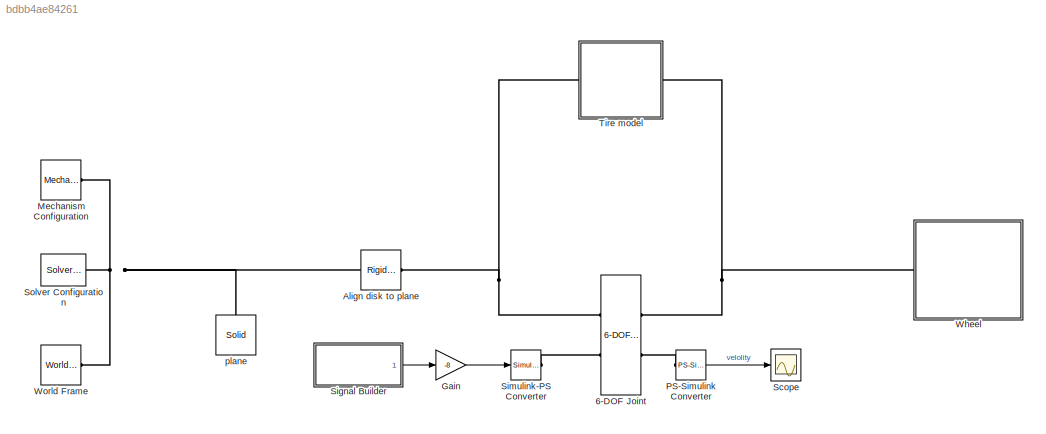
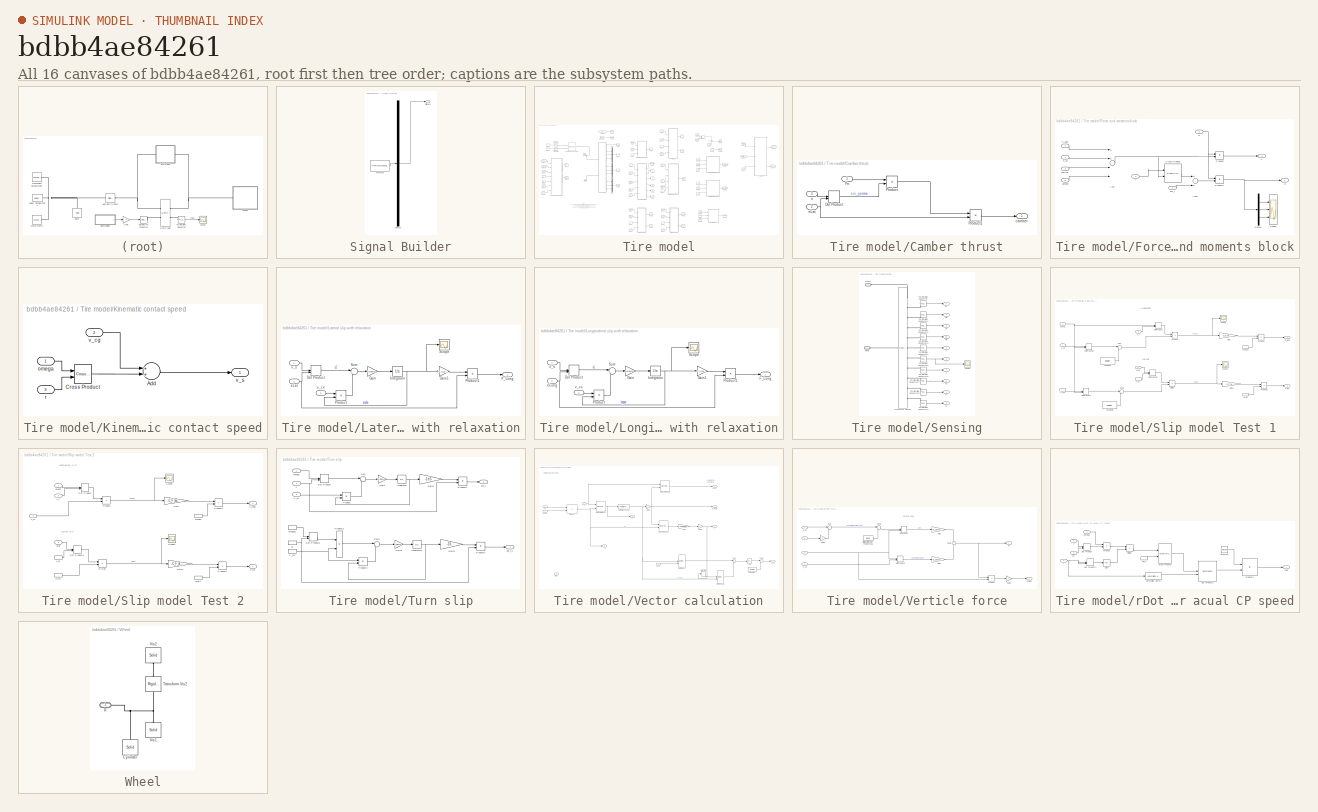
[diagram: thumbnail index - all 16 canvases of the model, root first then tree order]
MODEL slx_bdbb4ae84261
KIND model
CONFIG AbsTol = auto
CONFIG EnableMultiTasking = off
CONFIG FixedStep = auto
CONFIG MaxStep = auto
CONFIG MinStep = auto
CONFIG RelTol = 1e-3
CONFIG SampleTimeConstraint = Unconstrained
CONFIG Solver = VariableStepAuto
CONFIG SolverName = VariableStepAuto
CONFIG StartTime = 0.0
CONFIG StopTime = 45
BLOCK [Reference] 6-DOF Joint  REF=sm_lib/Joints/6-DOF Joint
  Ports = [0, 0, 0, 0, 0, 2, 2]
  SourceBlock = sm_lib/Joints/6-DOF Joint
  SourceProductBaseCode = MS
  SourceProductName = Simscape Multibody
  SourceType = 6-DOF Joint
BLOCK [Reference] Align disk to plane  REF=sm_lib/Frames and
Transforms/Rigid
Transform
  Ports = [0, 0, 0, 0, 0, 1, 1]
  SourceBlock = sm_lib/Frames and\nTransforms/Rigid\nTransform
  SourceProductBaseCode = MS
  SourceProductName = Simscape Multibody
  SourceType = Rigid\nTransform
BLOCK [Gain] Gain
  Gain = -8
  OutDataTypeStr = Inherit: Inherit via internal rule
  ParamDataTypeStr = Inherit: Inherit via internal rule
  SaturateOnIntegerOverflow = off
BLOCK [Reference] Mechanism Configuration  REF=sm_lib/Utilities/Mechanism
Configuration
  Ports = [0, 0, 0, 0, 0, 0, 1]
  SourceBlock = sm_lib/Utilities/Mechanism\nConfiguration
  SourceProductBaseCode = MS
  SourceProductName = Simscape Multibody
  SourceType = Mechanism\nConfiguration
BLOCK [Reference] PS-Simulink Converter  REF=nesl_utility/PS-Simulink
Converter
  Ports = [0, 1, 0, 0, 0, 1]
  SourceBlock = nesl_utility/PS-Simulink\nConverter
  SourceProductBaseCode = SS
  SourceProductName = Simscape
  SourceType = PS-Simulink\nConverter
BLOCK [Scope] Scope
  NumInputPorts = 1
  Ports = [1]
  ScopeSpecificationString = Simulink.scopes.TimeScopeBlockCfg('CurrentConfiguration', extmgr.ConfigurationSet(extmgr.Configuration('Core','General UI',true),extmgr.Configuration('Core','Source UI',true),extmgr.Configuration('Sources','WiredSimulink',true,'DataLoggingVariableName','ScopeData2'),extmgr.Configuration('Visuals','Time Domain',true,'SerializedDisplays',{struct('MinYLimReal','-1.27274','MaxYLimReal','1.34431','YLab...<+1466ch>
BLOCK [SubSystem] Signal Builder
  ClipboardFcn = sigbuilder_block('clipboard');
  CloseFcn = sigbuilder_block('close');
  ContinueFcn = sigbuilder_block('continue');
  CopyFcn = sigbuilder_block('copy');
  DeleteFcn = sigbuilder_block('delete');
  LoadFcn = sigbuilder_block('load');
  MaskHideContents = on
  ModelCloseFcn = sigbuilder_block('modelClose');
  NameChangeFcn = sigbuilder_block('namechange');
  OpenFcn = sigbuilder_block('open',[437.25 153 550.5 359.25 ]);
  PauseFcn = sigbuilder_block('pause');
  Ports = [0, 1]
  PreSaveFcn = sigbuilder_block('preSave');
  RequestExecContextInheritance = off
  StartFcn = sigbuilder_block('start');
  StopFcn = sigbuilder_block('stop');
  Tag = STV Subsys
  Variant = off
BLOCK [Demux] Signal Builder/Demux
  Outputs = 1
  Ports = [1, 1]
  Tag = STV Demux
BLOCK [FromWorkspace] Signal Builder/FromWs
  SampleTime = 0
  Tag = STV FromWs
  VariableName = tuvar
  ZeroCross = on
BLOCK [Outport] Signal Builder/Signal 1
  IconDisplay = Port number
  Tag = STV Outport
BLOCK [Reference] Simulink-PS Converter  REF=nesl_utility/Simulink-PS
Converter
  Ports = [1, 0, 0, 0, 0, 0, 1]
  SourceBlock = nesl_utility/Simulink-PS\nConverter
  SourceProductBaseCode = SS
  SourceProductName = Simscape
  SourceType = Simulink-PS\nConverter
BLOCK [Reference] Solver Configuration  REF=nesl_utility/Solver
Configuration
  Ports = [0, 0, 0, 0, 0, 0, 1]
  SourceBlock = nesl_utility/Solver\nConfiguration
  SourceProductBaseCode = SS
  SourceProductName = Simscape
  SourceType = Solver\nConfiguration
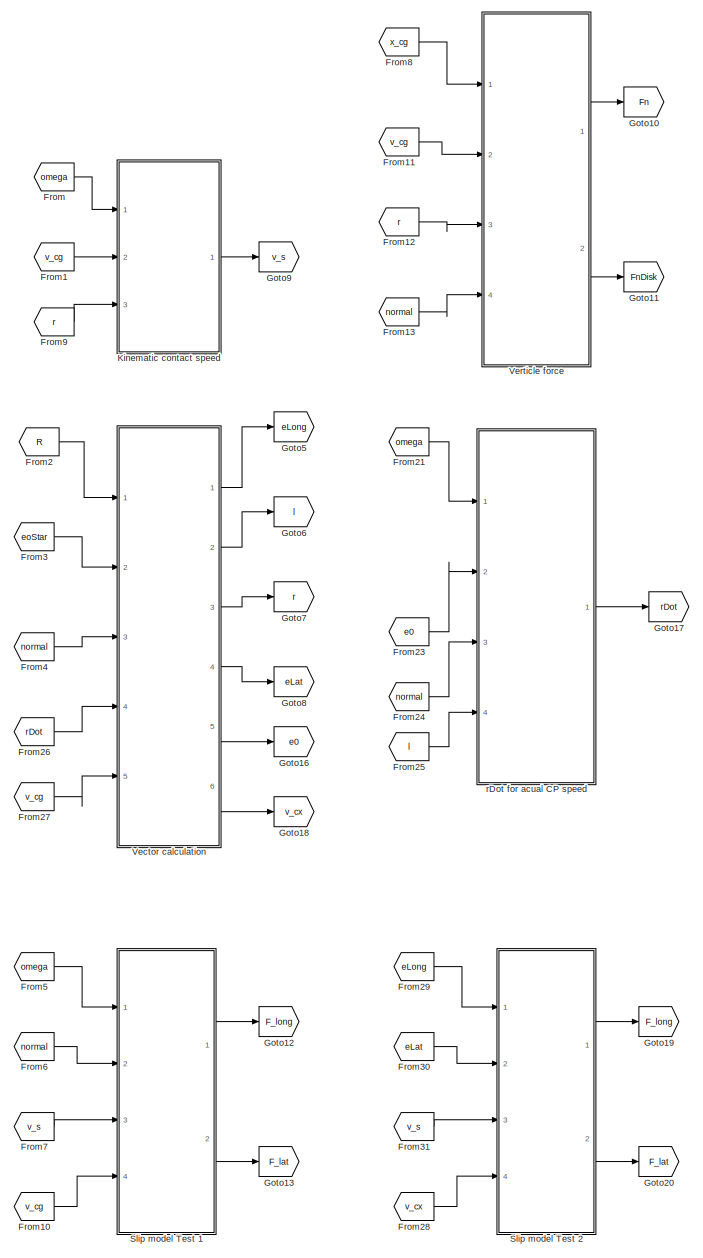
[diagram: Tire model - part 1/3, center side, full height]
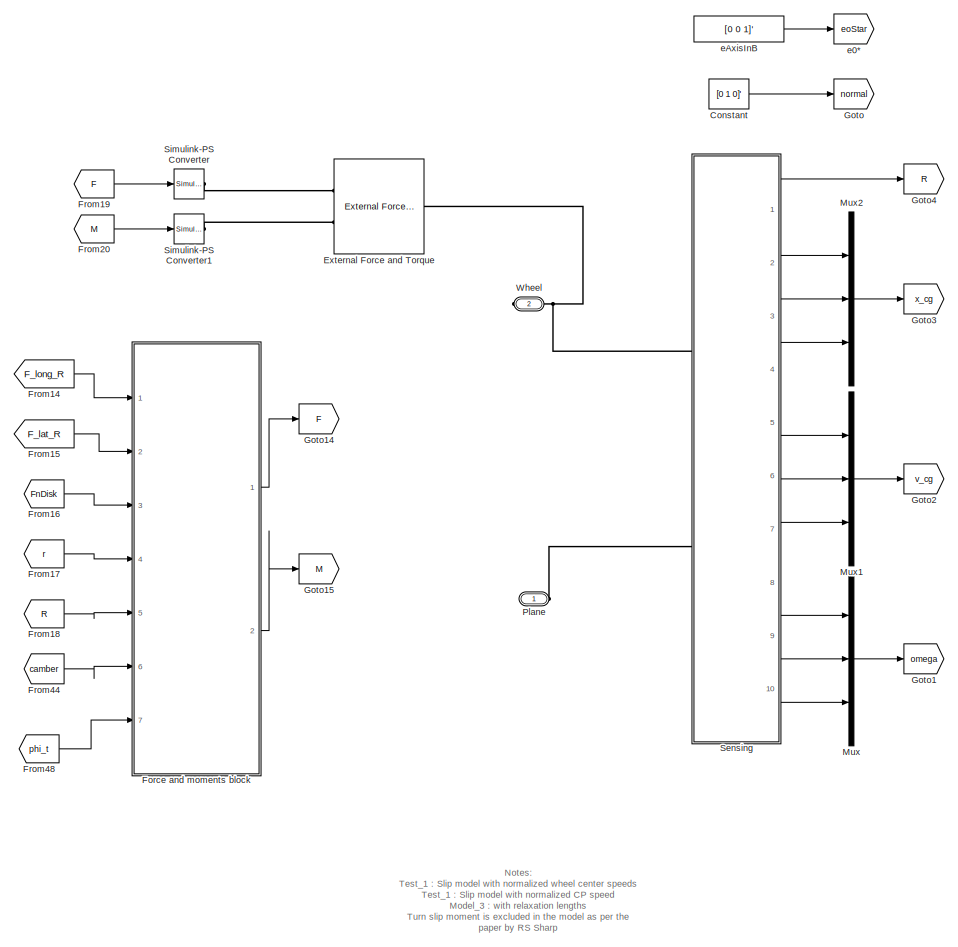
[diagram: Tire model - part 2/3, left side, full height]
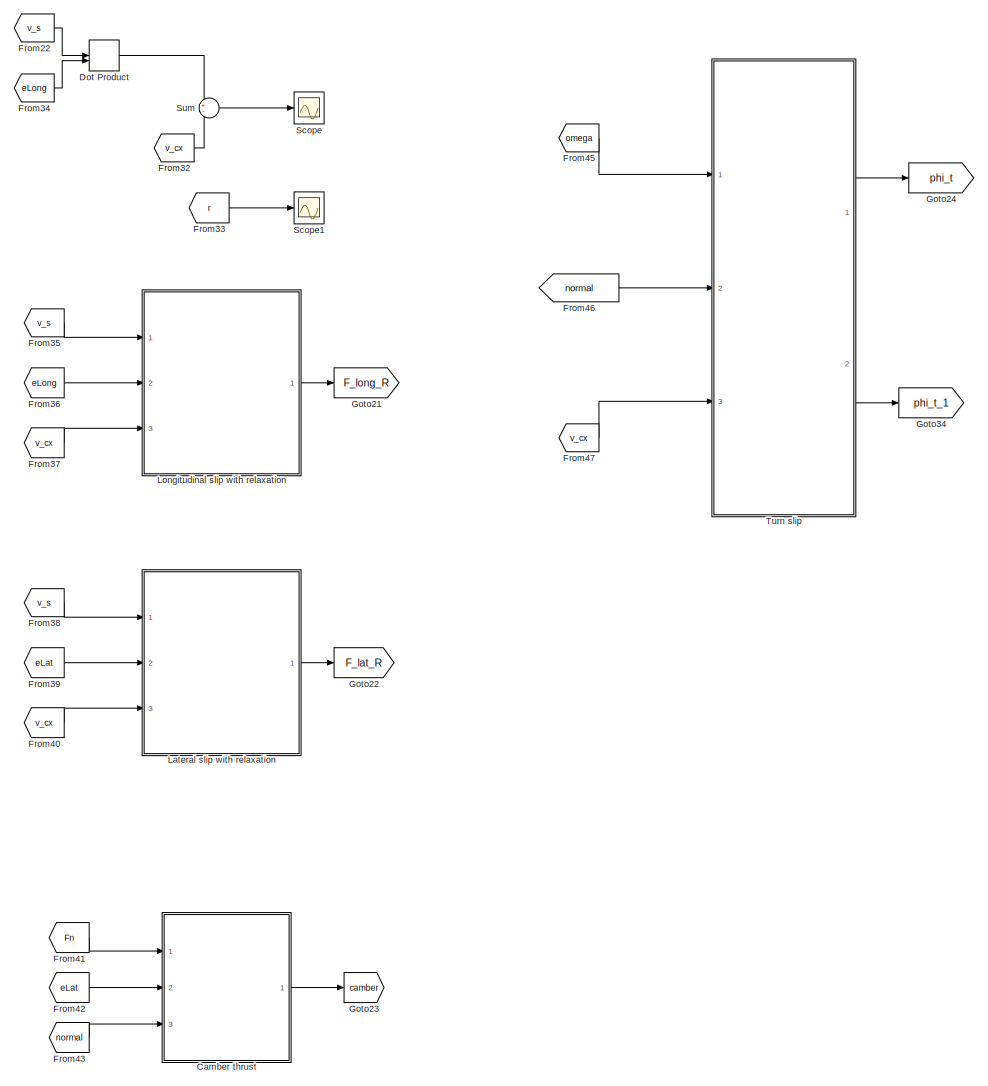
[diagram: Tire model - part 3/3, right side, full height]
BLOCK [SubSystem] Tire model
  Ports = [0, 0, 0, 0, 0, 1, 1]
  RequestExecContextInheritance = off
  Variant = off
BLOCK [SubSystem] Tire model/Camber thrust
  Ports = [3, 1]
  RequestExecContextInheritance = off
  Variant = off
BLOCK [DotProduct] Tire model/Camber thrust/Dot Product
  OutDataTypeStr = Inherit: Inherit via internal rule
BLOCK [Inport] Tire model/Camber thrust/Fn
  IconDisplay = Port number
BLOCK [Product] Tire model/Camber thrust/Product
  InputSameDT = off
  OutDataTypeStr = Inherit: Inherit via internal rule
  Ports = [2, 1]
  RndMeth = Floor
  SaturateOnIntegerOverflow = off
BLOCK [Product] Tire model/Camber thrust/Product1
  InputSameDT = off
  OutDataTypeStr = Inherit: Inherit via internal rule
  Ports = [2, 1]
  RndMeth = Floor
  SaturateOnIntegerOverflow = off
BLOCK [Outport] Tire model/Camber thrust/camber
  IconDisplay = Port number
BLOCK [Inport] Tire model/Camber thrust/eLat
  IconDisplay = Port number
  Port = 2
BLOCK [Inport] Tire model/Camber thrust/n
  IconDisplay = Port number
  Port = 3
BLOCK [Constant] Tire model/Constant
  Value = [0 1 0]'
BLOCK [DotProduct] Tire model/Dot Product
  OutDataTypeStr = Inherit: Inherit via internal rule
BLOCK [Reference] Tire model/External Force and Torque  REF=sm_lib/Forces and
Torques/External Force
and Torque
  Ports = [0, 0, 0, 0, 0, 2, 1]
  SourceBlock = sm_lib/Forces and\nTorques/External Force\nand Torque
  SourceProductBaseCode = MS
  SourceProductName = Simscape Multibody
  SourceType = External Force\nand Torque
BLOCK [SubSystem] Tire model/Force and moments block
  Ports = [7, 2]
  RequestExecContextInheritance = off
  Variant = off
BLOCK [Sum] Tire model/Force and moments block/Add
  InputSameDT = off
  Inputs = 4
  OutDataTypeStr = Inherit: Inherit via internal rule
  Ports = [4, 1]
  SaturateOnIntegerOverflow = off
BLOCK [Sum] Tire model/Force and moments block/Add1
  InputSameDT = off
  Inputs = 2
  OutDataTypeStr = Inherit: Inherit via internal rule
  Ports = [2, 1]
  SaturateOnIntegerOverflow = off
BLOCK [Reference] Tire model/Force and moments block/Cross Product  REF=vrlib/Utilities/Cross Product
  Ports = [2, 1]
  SourceBlock = vrlib/Utilities/Cross Product
  SourceProductBaseCode = VR
  SourceProductName = Simulink 3D Animation
  SourceType = Cross Product
BLOCK [Demux] Tire model/Force and moments block/Demux
  DisplayOption = bar
  Outputs = 3
  Ports = [1, 3]
BLOCK [Outport] Tire model/Force and moments block/F
  IconDisplay = Port number
BLOCK [Inport] Tire model/Force and moments block/F_lat
  IconDisplay = Port number
  Port = 2
BLOCK [Inport] Tire model/Force and moments block/F_long
  IconDisplay = Port number
BLOCK [Inport] Tire model/Force and moments block/FnDisk
  IconDisplay = Port number
  Port = 3
BLOCK [Outport] Tire model/Force and moments block/M
  IconDisplay = Port number
  Port = 2
BLOCK [Product] Tire model/Force and moments block/Product
  InputSameDT = off
  Inputs = /*
  Multiplication = Matrix(*)
  OutDataTypeStr = Inherit: Inherit via internal rule
  Ports = [2, 1]
  RndMeth = Floor
  SaturateOnIntegerOverflow = off
BLOCK [Product] Tire model/Force and moments block/Product1
  InputSameDT = off
  Inputs = /*
  Multiplication = Matrix(*)
  OutDataTypeStr = Inherit: Inherit via internal rule
  Ports = [2, 1]
  RndMeth = Floor
  SaturateOnIntegerOverflow = off
BLOCK [Inport] Tire model/Force and moments block/R
  IconDisplay = Port number
  Port = 5
BLOCK [Scope] Tire model/Force and moments block/Scope
  NumInputPorts = 3
  Ports = [3]
  ScopeSpecificationString = Simulink.scopes.TimeScopeBlockCfg('CurrentConfiguration', extmgr.ConfigurationSet(extmgr.Configuration('Core','General UI',true),extmgr.Configuration('Core','Source UI',true),extmgr.Configuration('Sources','WiredSimulink',true,'DataLoggingVariableName','ScopeData5'),extmgr.Configuration('Visuals','Time Domain',true,'SerializedDisplays',{struct('MinYLimReal','-0.00025','MaxYLimReal','0.00025','YLab...<+2749ch>
BLOCK [Inport] Tire model/Force and moments block/camber
  IconDisplay = Port number
  Port = 6
BLOCK [Inport] Tire model/Force and moments block/phi_t
  IconDisplay = Port number
  Port = 7
BLOCK [Inport] Tire model/Force and moments block/r
  IconDisplay = Port number
  Port = 4
BLOCK [From] Tire model/From
  GotoTag = omega
BLOCK [From] Tire model/From1
  GotoTag = v_cg
BLOCK [From] Tire model/From10
  Commented = on
  GotoTag = v_cg
BLOCK [From] Tire model/From11
  GotoTag = v_cg
BLOCK [From] Tire model/From12
  GotoTag = r
BLOCK [From] Tire model/From13
  GotoTag = normal
BLOCK [From] Tire model/From14
  GotoTag = F_long_R
BLOCK [From] Tire model/From15
  GotoTag = F_lat_R
BLOCK [From] Tire model/From16
  GotoTag = FnDisk
BLOCK [From] Tire model/From17
  GotoTag = r
BLOCK [From] Tire model/From18
  GotoTag = R
BLOCK [From] Tire model/From19
  GotoTag = F
BLOCK [From] Tire model/From2
  GotoTag = R
BLOCK [From] Tire model/From20
  GotoTag = M
BLOCK [From] Tire model/From21
  Commented = on
  GotoTag = omega
BLOCK [From] Tire model/From22
  GotoTag = v_s
BLOCK [From] Tire model/From23
  Commented = on
  GotoTag = e0
BLOCK [From] Tire model/From24
  Commented = on
  GotoTag = normal
BLOCK [From] Tire model/From25
  Commented = on
  GotoTag = l
BLOCK [From] Tire model/From26
  GotoTag = rDot
BLOCK [From] Tire model/From27
  GotoTag = v_cg
BLOCK [From] Tire model/From28
  GotoTag = v_cx
BLOCK [From] Tire model/From29
  GotoTag = eLong
BLOCK [From] Tire model/From3
  GotoTag = eoStar
BLOCK [From] Tire model/From30
  GotoTag = eLat
BLOCK [From] Tire model/From31
  GotoTag = v_s
BLOCK [From] Tire model/From32
  GotoTag = v_cx
BLOCK [From] Tire model/From33
  GotoTag = r
BLOCK [From] Tire model/From34
  GotoTag = eLong
BLOCK [From] Tire model/From35
  GotoTag = v_s
BLOCK [From] Tire model/From36
  GotoTag = eLong
BLOCK [From] Tire model/From37
  GotoTag = v_cx
BLOCK [From] Tire model/From38
  GotoTag = v_s
BLOCK [From] Tire model/From39
  GotoTag = eLat
BLOCK [From] Tire model/From4
  GotoTag = normal
BLOCK [From] Tire model/From40
  GotoTag = v_cx
BLOCK [From] Tire model/From41
  GotoTag = Fn
BLOCK [From] Tire model/From42
  GotoTag = eLat
BLOCK [From] Tire model/From43
  GotoTag = normal
BLOCK [From] Tire model/From44
  GotoTag = camber
BLOCK [From] Tire model/From45
  GotoTag = omega
BLOCK [From] Tire model/From46
  GotoTag = normal
BLOCK [From] Tire model/From47
  GotoTag = v_cx
BLOCK [From] Tire model/From48
  GotoTag = phi_t
BLOCK [From] Tire model/From5
  Commented = on
  GotoTag = omega
BLOCK [From] Tire model/From6
  Commented = on
  GotoTag = normal
BLOCK [From] Tire model/From7
  Commented = on
  GotoTag = v_s
BLOCK [From] Tire model/From8
  GotoTag = x_cg
BLOCK [From] Tire model/From9
  GotoTag = r
BLOCK [Goto] Tire model/Goto
  GotoTag = normal
BLOCK [Goto] Tire model/Goto1
  GotoTag = omega
BLOCK [Goto] Tire model/Goto10
  GotoTag = Fn
BLOCK [Goto] Tire model/Goto11
  GotoTag = FnDisk
BLOCK [Goto] Tire model/Goto12
  Commented = on
  GotoTag = F_long
BLOCK [Goto] Tire model/Goto13
  Commented = on
  GotoTag = F_lat
BLOCK [Goto] Tire model/Goto14
  GotoTag = F
BLOCK [Goto] Tire model/Goto15
  GotoTag = M
BLOCK [Goto] Tire model/Goto16
  GotoTag = e0
BLOCK [Goto] Tire model/Goto17
  Commented = on
  GotoTag = rDot
BLOCK [Goto] Tire model/Goto18
  GotoTag = v_cx
BLOCK [Goto] Tire model/Goto19
  GotoTag = F_long
BLOCK [Goto] Tire model/Goto2
  GotoTag = v_cg
BLOCK [Goto] Tire model/Goto20
  GotoTag = F_lat
BLOCK [Goto] Tire model/Goto21
  GotoTag = F_long_R
BLOCK [Goto] Tire model/Goto22
  GotoTag = F_lat_R
BLOCK [Goto] Tire model/Goto23
  GotoTag = camber
BLOCK [Goto] Tire model/Goto24
  GotoTag = phi_t
BLOCK [Goto] Tire model/Goto3
  GotoTag = x_cg
BLOCK [Goto] Tire model/Goto34
  GotoTag = phi_t_1
BLOCK [Goto] Tire model/Goto4
  GotoTag = R
BLOCK [Goto] Tire model/Goto5
  GotoTag = eLong
BLOCK [Goto] Tire model/Goto6
  GotoTag = l
BLOCK [Goto] Tire model/Goto7
  GotoTag = r
BLOCK [Goto] Tire model/Goto8
  GotoTag = eLat
BLOCK [Goto] Tire model/Goto9
  GotoTag = v_s
BLOCK [SubSystem] Tire model/Kinematic contact speed
  Ports = [3, 1]
  RequestExecContextInheritance = off
  Variant = off
BLOCK [Sum] Tire model/Kinematic contact speed/Add
  InputSameDT = off
  OutDataTypeStr = Inherit: Inherit via internal rule
  Ports = [2, 1]
  SaturateOnIntegerOverflow = off
BLOCK [Reference] Tire model/Kinematic contact speed/Cross Product  REF=vrlib/Utilities/Cross Product
  Ports = [2, 1]
  SourceBlock = vrlib/Utilities/Cross Product
  SourceProductBaseCode = VR
  SourceProductName = Simulink 3D Animation
  SourceType = Cross Product
BLOCK [Inport] Tire model/Kinematic contact speed/omega
  IconDisplay = Port number
BLOCK [Inport] Tire model/Kinematic contact speed/r
  IconDisplay = Port number
  Port = 3
BLOCK [Inport] Tire model/Kinematic contact speed/v_cg
  IconDisplay = Port number
  Port = 2
BLOCK [Outport] Tire model/Kinematic contact speed/v_s
  IconDisplay = Port number
BLOCK [SubSystem] Tire model/Lateral slip with relaxation
  Ports = [3, 1]
  RequestExecContextInheritance = off
  Variant = off
BLOCK [DotProduct] Tire model/Lateral slip with relaxation/Dot Product
  OutDataTypeStr = Inherit: Inherit via internal rule
BLOCK [Outport] Tire model/Lateral slip with relaxation/F_Long
  IconDisplay = Port number
BLOCK [Gain] Tire model/Lateral slip with relaxation/Gain
  Gain = 1/sigma
  OutDataTypeStr = Inherit: Inherit via internal rule
  ParamDataTypeStr = Inherit: Inherit via internal rule
  SaturateOnIntegerOverflow = off
BLOCK [Gain] Tire model/Lateral slip with relaxation/Gain1
  Gain = -C_F_alpha
  OutDataTypeStr = Inherit: Inherit via internal rule
  ParamDataTypeStr = Inherit: Inherit via internal rule
  SaturateOnIntegerOverflow = off
BLOCK [Integrator] Tire model/Lateral slip with relaxation/Integrator
  Ports = [1, 1]
BLOCK [Product] Tire model/Lateral slip with relaxation/Product
  InputSameDT = off
  OutDataTypeStr = Inherit: Inherit via internal rule
  Ports = [2, 1]
  RndMeth = Floor
  SaturateOnIntegerOverflow = off
BLOCK [Product] Tire model/Lateral slip with relaxation/Product1
  InputSameDT = off
  OutDataTypeStr = Inherit: Inherit via internal rule
  Ports = [2, 1]
  RndMeth = Floor
  SaturateOnIntegerOverflow = off
BLOCK [Scope] Tire model/Lateral slip with relaxation/Scope
  NumInputPorts = 1
  Ports = [1]
  ScopeSpecificationString = Simulink.scopes.TimeScopeBlockCfg('CurrentConfiguration', extmgr.ConfigurationSet(extmgr.Configuration('Core','General UI',true),extmgr.Configuration('Core','Source UI',true),extmgr.Configuration('Sources','WiredSimulink',true,'DataLoggingVariableName','ScopeData4'),extmgr.Configuration('Visuals','Time Domain',true,'SerializedDisplays',{struct('MinYLimReal','-0.0000005','MaxYLimReal','0.0000005','...<+1435ch>
BLOCK [Sum] Tire model/Lateral slip with relaxation/Sum
  IconShape = round
  InputSameDT = off
  Inputs = |+-
  OutDataTypeStr = Inherit: Inherit via internal rule
  Ports = [2, 1]
  SaturateOnIntegerOverflow = off
BLOCK [Inport] Tire model/Lateral slip with relaxation/eLat
  IconDisplay = Port number
  Port = 2
BLOCK [Inport] Tire model/Lateral slip with relaxation/v_cx
  IconDisplay = Port number
  Port = 3
BLOCK [Inport] Tire model/Lateral slip with relaxation/v_s
  IconDisplay = Port number
BLOCK [SubSystem] Tire model/Longitudinal slip with relaxation
  Ports = [3, 1]
  RequestExecContextInheritance = off
  Variant = off
BLOCK [DotProduct] Tire model/Longitudinal slip with relaxation/Dot Product
  OutDataTypeStr = Inherit: Inherit via internal rule
BLOCK [Outport] Tire model/Longitudinal slip with relaxation/F_Long
  IconDisplay = Port number
BLOCK [Gain] Tire model/Longitudinal slip with relaxation/Gain
  Gain = 1/sigma
  OutDataTypeStr = Inherit: Inherit via internal rule
  ParamDataTypeStr = Inherit: Inherit via internal rule
  SaturateOnIntegerOverflow = off
BLOCK [Gain] Tire model/Longitudinal slip with relaxation/Gain1
  Gain = -C_F_kappa
  OutDataTypeStr = Inherit: Inherit via internal rule
  ParamDataTypeStr = Inherit: Inherit via internal rule
  SaturateOnIntegerOverflow = off
BLOCK [Integrator] Tire model/Longitudinal slip with relaxation/Integrator
  Ports = [1, 1]
BLOCK [Product] Tire model/Longitudinal slip with relaxation/Product
  InputSameDT = off
  OutDataTypeStr = Inherit: Inherit via internal rule
  Ports = [2, 1]
  RndMeth = Floor
  SaturateOnIntegerOverflow = off
BLOCK [Product] Tire model/Longitudinal slip with relaxation/Product1
  InputSameDT = off
  OutDataTypeStr = Inherit: Inherit via internal rule
  Ports = [2, 1]
  RndMeth = Floor
  SaturateOnIntegerOverflow = off
BLOCK [Scope] Tire model/Longitudinal slip with relaxation/Scope
  NumInputPorts = 1
  Ports = [1]
  ScopeSpecificationString = Simulink.scopes.TimeScopeBlockCfg('CurrentConfiguration', extmgr.ConfigurationSet(extmgr.Configuration('Core','General UI',true),extmgr.Configuration('Core','Source UI',true),extmgr.Configuration('Sources','WiredSimulink',true,'DataLoggingVariableName','ScopeData3'),extmgr.Configuration('Visuals','Time Domain',true,'SerializedDisplays',{struct('MinYLimReal','-0.04083','MaxYLimReal','0.04259','YLab...<+1392ch>
BLOCK [Sum] Tire model/Longitudinal slip with relaxation/Sum
  IconShape = round
  InputSameDT = off
  Inputs = |+-
  OutDataTypeStr = Inherit: Inherit via internal rule
  Ports = [2, 1]
  SaturateOnIntegerOverflow = off
BLOCK [Inport] Tire model/Longitudinal slip with relaxation/eLong
  IconDisplay = Port number
  Port = 2
BLOCK [Inport] Tire model/Longitudinal slip with relaxation/v_cx
  IconDisplay = Port number
  Port = 3
BLOCK [Inport] Tire model/Longitudinal slip with relaxation/v_s
  IconDisplay = Port number
BLOCK [Mux] Tire model/Mux
  DisplayOption = bar
  Inputs = 3
  Ports = [3, 1]
BLOCK [Mux] Tire model/Mux1
  DisplayOption = bar
  Inputs = 3
  Ports = [3, 1]
BLOCK [Mux] Tire model/Mux2
  DisplayOption = bar
  Inputs = 3
  Ports = [3, 1]
BLOCK [PMIOPort] Tire model/Plane
  Port = 1
  Side = Left
BLOCK [Scope] Tire model/Scope
  NumInputPorts = 1
  Ports = [1]
  ScopeSpecificationString = Simulink.scopes.TimeScopeBlockCfg('CurrentConfiguration', extmgr.ConfigurationSet(extmgr.Configuration('Core','General UI',true),extmgr.Configuration('Core','Source UI',true),extmgr.Configuration('Sources','WiredSimulink',true,'DataLoggingVariableName','ScopeData1'),extmgr.Configuration('Visuals','Time Domain',true,'SerializedDisplays',{struct('MinYLimReal','-1.31529','MaxYLimReal','0.14603','YLab...<+1392ch>
BLOCK [Scope] Tire model/Scope1
  NumInputPorts = 1
  Ports = [1]
  ScopeSpecificationString = Simulink.scopes.TimeScopeBlockCfg('CurrentConfiguration', extmgr.ConfigurationSet(extmgr.Configuration('Core','General UI',true),extmgr.Configuration('Core','Source UI',true),extmgr.Configuration('Sources','WiredSimulink',true,'DataLoggingVariableName','ScopeData2'),extmgr.Configuration('Visuals','Time Domain',true,'SerializedDisplays',{struct('MinYLimReal','-0.74295','MaxYLimReal','0.08255','YLab...<+1483ch>
BLOCK [SubSystem] Tire model/Sensing
  Ports = [0, 10, 0, 0, 0, 2]
  RequestExecContextInheritance = off
  Variant = off
BLOCK [Reference] Tire model/Sensing/PS-Simulink Converter  REF=nesl_utility/PS-Simulink
Converter
  Ports = [0, 1, 0, 0, 0, 1]
  SourceBlock = nesl_utility/PS-Simulink\nConverter
  SourceProductBaseCode = SS
  SourceProductName = Simscape
  SourceType = PS-Simulink\nConverter
BLOCK [Reference] Tire model/Sensing/PS-Simulink Converter1  REF=nesl_utility/PS-Simulink
Converter
  Ports = [0, 1, 0, 0, 0, 1]
  SourceBlock = nesl_utility/PS-Simulink\nConverter
  SourceProductBaseCode = SS
  SourceProductName = Simscape
  SourceType = PS-Simulink\nConverter
BLOCK [Reference] Tire model/Sensing/PS-Simulink Converter2  REF=nesl_utility/PS-Simulink
Converter
  Ports = [0, 1, 0, 0, 0, 1]
  SourceBlock = nesl_utility/PS-Simulink\nConverter
  SourceProductBaseCode = SS
  SourceProductName = Simscape
  SourceType = PS-Simulink\nConverter
BLOCK [Reference] Tire model/Sensing/PS-Simulink Converter3  REF=nesl_utility/PS-Simulink
Converter
  Ports = [0, 1, 0, 0, 0, 1]
  SourceBlock = nesl_utility/PS-Simulink\nConverter
  SourceProductBaseCode = SS
  SourceProductName = Simscape
  SourceType = PS-Simulink\nConverter
BLOCK [Reference] Tire model/Sensing/PS-Simulink Converter4  REF=nesl_utility/PS-Simulink
Converter
  Ports = [0, 1, 0, 0, 0, 1]
  SourceBlock = nesl_utility/PS-Simulink\nConverter
  SourceProductBaseCode = SS
  SourceProductName = Simscape
  SourceType = PS-Simulink\nConverter
BLOCK [Reference] Tire model/Sensing/PS-Simulink Converter5  REF=nesl_utility/PS-Simulink
Converter
  Ports = [0, 1, 0, 0, 0, 1]
  SourceBlock = nesl_utility/PS-Simulink\nConverter
  SourceProductBaseCode = SS
  SourceProductName = Simscape
  SourceType = PS-Simulink\nConverter
BLOCK [Reference] Tire model/Sensing/PS-Simulink Converter6  REF=nesl_utility/PS-Simulink
Converter
  Ports = [0, 1, 0, 0, 0, 1]
  SourceBlock = nesl_utility/PS-Simulink\nConverter
  SourceProductBaseCode = SS
  SourceProductName = Simscape
  SourceType = PS-Simulink\nConverter
BLOCK [Reference] Tire model/Sensing/PS-Simulink Converter7  REF=nesl_utility/PS-Simulink
Converter
  Ports = [0, 1, 0, 0, 0, 1]
  SourceBlock = nesl_utility/PS-Simulink\nConverter
  SourceProductBaseCode = SS
  SourceProductName = Simscape
  SourceType = PS-Simulink\nConverter
BLOCK [Reference] Tire model/Sensing/PS-Simulink Converter8  REF=nesl_utility/PS-Simulink
Converter
  Ports = [0, 1, 0, 0, 0, 1]
  SourceBlock = nesl_utility/PS-Simulink\nConverter
  SourceProductBaseCode = SS
  SourceProductName = Simscape
  SourceType = PS-Simulink\nConverter
BLOCK [Reference] Tire model/Sensing/PS-Simulink Converter9  REF=nesl_utility/PS-Simulink
Converter
  Ports = [0, 1, 0, 0, 0, 1]
  SourceBlock = nesl_utility/PS-Simulink\nConverter
  SourceProductBaseCode = SS
  SourceProductName = Simscape
  SourceType = PS-Simulink\nConverter
BLOCK [PMIOPort] Tire model/Sensing/Plane
  Port = 2
  Side = Left
BLOCK [Outport] Tire model/Sensing/R
  IconDisplay = Port number
BLOCK [Scope] Tire model/Sensing/Scope
  NumInputPorts = 1
  Ports = [1]
  ScopeSpecificationString = Simulink.scopes.TimeScopeBlockCfg('CurrentConfiguration', extmgr.ConfigurationSet(extmgr.Configuration('Core','General UI',true),extmgr.Configuration('Core','Source UI',true),extmgr.Configuration('Sources','WiredSimulink',true,'DataLoggingVariableName','ScopeData7'),extmgr.Configuration('Visuals','Time Domain',true,'SerializedDisplays',{struct('MinYLimReal','0.63401','MaxYLimReal','0.66333','YLabe...<+1379ch>
BLOCK [Reference] Tire model/Sensing/Transform Sensor  REF=sm_lib/Frames and
Transforms/Transform
Sensor
  Ports = [0, 0, 0, 0, 0, 1, 11]
  SourceBlock = sm_lib/Frames and\nTransforms/Transform\nSensor
  SourceProductBaseCode = MS
  SourceProductName = Simscape Multibody
  SourceType = Transform\nSensor
BLOCK [PMIOPort] Tire model/Sensing/Wheel
  Port = 1
  Side = Left
BLOCK [Outport] Tire model/Sensing/vx
  IconDisplay = Port number
  Port = 5
BLOCK [Outport] Tire model/Sensing/vy
  IconDisplay = Port number
  Port = 6
BLOCK [Outport] Tire model/Sensing/vz
  IconDisplay = Port number
  Port = 7
BLOCK [Outport] Tire model/Sensing/wx
  IconDisplay = Port number
  Port = 8
BLOCK [Outport] Tire model/Sensing/wy
  IconDisplay = Port number
  Port = 9
BLOCK [Outport] Tire model/Sensing/wz
  IconDisplay = Port number
  Port = 10
BLOCK [Outport] Tire model/Sensing/x
  IconDisplay = Port number
  Port = 2
BLOCK [Outport] Tire model/Sensing/y
  IconDisplay = Port number
  Port = 3
BLOCK [Outport] Tire model/Sensing/z
  IconDisplay = Port number
  Port = 4
BLOCK [Reference] Tire model/Simulink-PS Converter  REF=nesl_utility/Simulink-PS
Converter
  Ports = [1, 0, 0, 0, 0, 0, 1]
  SourceBlock = nesl_utility/Simulink-PS\nConverter
  SourceProductBaseCode = SS
  SourceProductName = Simscape
  SourceType = Simulink-PS\nConverter
BLOCK [Reference] Tire model/Simulink-PS Converter1  REF=nesl_utility/Simulink-PS
Converter
  Ports = [1, 0, 0, 0, 0, 0, 1]
  SourceBlock = nesl_utility/Simulink-PS\nConverter
  SourceProductBaseCode = SS
  SourceProductName = Simscape
  SourceType = Simulink-PS\nConverter
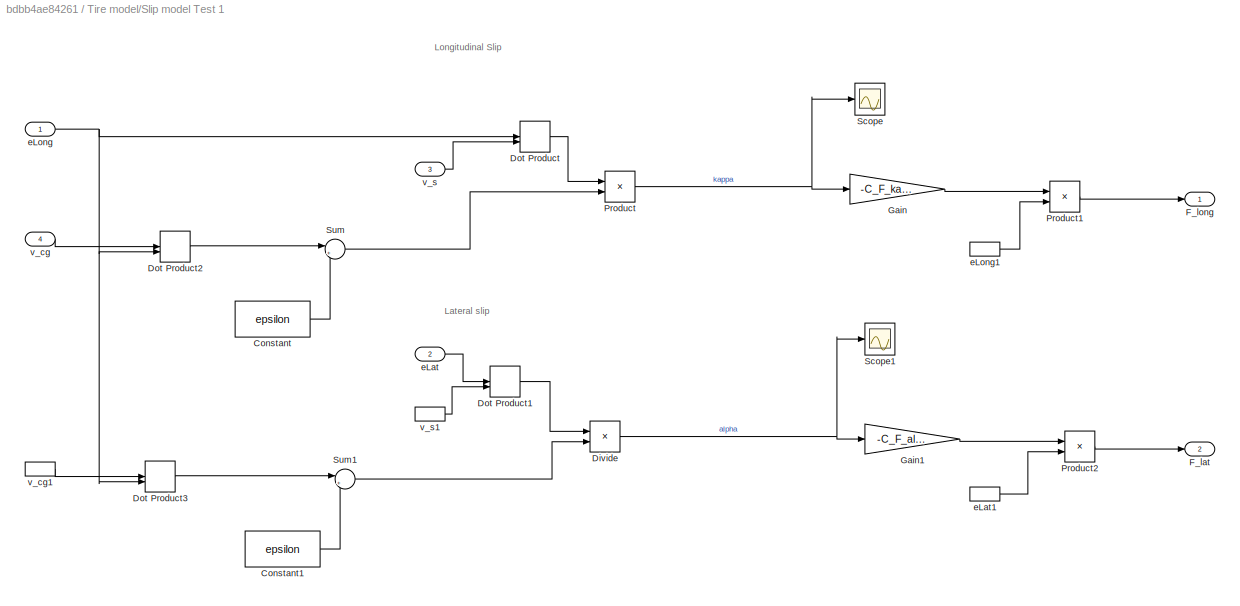
BLOCK [SubSystem] Tire model/Slip model Test 1
  Commented = on
  Ports = [4, 2]
  RequestExecContextInheritance = off
  Variant = off
BLOCK [Constant] Tire model/Slip model Test 1/Constant
  Value = epsilon
BLOCK [Constant] Tire model/Slip model Test 1/Constant1
  Value = epsilon
BLOCK [Product] Tire model/Slip model Test 1/Divide
  InputSameDT = off
  Inputs = */
  OutDataTypeStr = Inherit: Inherit via internal rule
  Ports = [2, 1]
  RndMeth = Floor
  SaturateOnIntegerOverflow = off
BLOCK [DotProduct] Tire model/Slip model Test 1/Dot Product
  OutDataTypeStr = Inherit: Inherit via internal rule
BLOCK [DotProduct] Tire model/Slip model Test 1/Dot Product1
  OutDataTypeStr = Inherit: Inherit via internal rule
BLOCK [DotProduct] Tire model/Slip model Test 1/Dot Product2
  OutDataTypeStr = Inherit: Inherit via internal rule
BLOCK [DotProduct] Tire model/Slip model Test 1/Dot Product3
  OutDataTypeStr = Inherit: Inherit via internal rule
BLOCK [Outport] Tire model/Slip model Test 1/F_lat
  IconDisplay = Port number
  Port = 2
BLOCK [Outport] Tire model/Slip model Test 1/F_long
  IconDisplay = Port number
BLOCK [Gain] Tire model/Slip model Test 1/Gain
  Gain = -C_F_kappa
  OutDataTypeStr = Inherit: Inherit via internal rule
  ParamDataTypeStr = Inherit: Inherit via internal rule
  SaturateOnIntegerOverflow = off
BLOCK [Gain] Tire model/Slip model Test 1/Gain1
  Gain = -C_F_alpha
  OutDataTypeStr = Inherit: Inherit via internal rule
  ParamDataTypeStr = Inherit: Inherit via internal rule
  SaturateOnIntegerOverflow = off
BLOCK [Product] Tire model/Slip model Test 1/Product
  InputSameDT = off
  Inputs = */
  OutDataTypeStr = Inherit: Inherit via internal rule
  Ports = [2, 1]
  RndMeth = Floor
  SaturateOnIntegerOverflow = off
BLOCK [Product] Tire model/Slip model Test 1/Product1
  InputSameDT = off
  OutDataTypeStr = Inherit: Inherit via internal rule
  Ports = [2, 1]
  RndMeth = Floor
  SaturateOnIntegerOverflow = off
BLOCK [Product] Tire model/Slip model Test 1/Product2
  InputSameDT = off
  OutDataTypeStr = Inherit: Inherit via internal rule
  Ports = [2, 1]
  RndMeth = Floor
  SaturateOnIntegerOverflow = off
BLOCK [Scope] Tire model/Slip model Test 1/Scope
  NumInputPorts = 1
  Ports = [1]
  ScopeSpecificationString = Simulink.scopes.TimeScopeBlockCfg('CurrentConfiguration', extmgr.ConfigurationSet(extmgr.Configuration('Core','General UI',true),extmgr.Configuration('Core','Source UI',true),extmgr.Configuration('Sources','WiredSimulink',true),extmgr.Configuration('Visuals','Time Domain',true,'SerializedDisplays',{struct('MinYLimReal','-0.00000000000000009','MaxYLimReal','0.00000000000000001','YLabelReal','','Min...<+1476ch>
BLOCK [Scope] Tire model/Slip model Test 1/Scope1
  NumInputPorts = 1
  Ports = [1]
  ScopeSpecificationString = Simulink.scopes.TimeScopeBlockCfg('CurrentConfiguration', extmgr.ConfigurationSet(extmgr.Configuration('Core','General UI',true),extmgr.Configuration('Core','Source UI',true),extmgr.Configuration('Sources','WiredSimulink',true,'DataLoggingVariableName','ScopeData1'),extmgr.Configuration('Visuals','Time Domain',true,'SerializedDisplays',{struct('MinYLimReal','-0.02013','MaxYLimReal','0.00224','YLab...<+1418ch>
BLOCK [Sum] Tire model/Slip model Test 1/Sum
  IconShape = round
  InputSameDT = off
  Inputs = |++
  OutDataTypeStr = Inherit: Inherit via internal rule
  Ports = [2, 1]
  SaturateOnIntegerOverflow = off
BLOCK [Sum] Tire model/Slip model Test 1/Sum1
  IconShape = round
  InputSameDT = off
  Inputs = |++
  OutDataTypeStr = Inherit: Inherit via internal rule
  Ports = [2, 1]
  SaturateOnIntegerOverflow = off
BLOCK [Inport] Tire model/Slip model Test 1/eLat
  IconDisplay = Port number
  Port = 2
BLOCK [InportShadow] Tire model/Slip model Test 1/eLat1
  IconDisplay = Port number
  Port = 2
BLOCK [Inport] Tire model/Slip model Test 1/eLong
  IconDisplay = Port number
BLOCK [InportShadow] Tire model/Slip model Test 1/eLong1
  IconDisplay = Port number
BLOCK [Inport] Tire model/Slip model Test 1/v_cg
  IconDisplay = Port number
  Port = 4
BLOCK [InportShadow] Tire model/Slip model Test 1/v_cg1
  IconDisplay = Port number
  Port = 4
BLOCK [Inport] Tire model/Slip model Test 1/v_s
  IconDisplay = Port number
  Port = 3
BLOCK [InportShadow] Tire model/Slip model Test 1/v_s1
  IconDisplay = Port number
  Port = 3
BLOCK [SubSystem] Tire model/Slip model Test 2
  Ports = [4, 2]
  RequestExecContextInheritance = off
  Variant = off
BLOCK [Product] Tire model/Slip model Test 2/Divide
  InputSameDT = off
  Inputs = */
  OutDataTypeStr = Inherit: Inherit via internal rule
  Ports = [2, 1]
  RndMeth = Floor
  SaturateOnIntegerOverflow = off
BLOCK [DotProduct] Tire model/Slip model Test 2/Dot Product
  OutDataTypeStr = Inherit: Inherit via internal rule
BLOCK [DotProduct] Tire model/Slip model Test 2/Dot Product1
  OutDataTypeStr = Inherit: Inherit via internal rule
BLOCK [Outport] Tire model/Slip model Test 2/F_lat
  IconDisplay = Port number
  Port = 2
BLOCK [Outport] Tire model/Slip model Test 2/F_long
  IconDisplay = Port number
BLOCK [Gain] Tire model/Slip model Test 2/Gain
  Gain = -C_F_kappa
  OutDataTypeStr = Inherit: Inherit via internal rule
  ParamDataTypeStr = Inherit: Inherit via internal rule
  SaturateOnIntegerOverflow = off
BLOCK [Gain] Tire model/Slip model Test 2/Gain1
  Gain = -C_F_alpha
  OutDataTypeStr = Inherit: Inherit via internal rule
  ParamDataTypeStr = Inherit: Inherit via internal rule
  SaturateOnIntegerOverflow = off
BLOCK [Product] Tire model/Slip model Test 2/Product
  InputSameDT = off
  Inputs = */
  OutDataTypeStr = Inherit: Inherit via internal rule
  Ports = [2, 1]
  RndMeth = Floor
  SaturateOnIntegerOverflow = off
BLOCK [Product] Tire model/Slip model Test 2/Product1
  InputSameDT = off
  OutDataTypeStr = Inherit: Inherit via internal rule
  Ports = [2, 1]
  RndMeth = Floor
  SaturateOnIntegerOverflow = off
BLOCK [Product] Tire model/Slip model Test 2/Product2
  InputSameDT = off
  OutDataTypeStr = Inherit: Inherit via internal rule
  Ports = [2, 1]
  RndMeth = Floor
  SaturateOnIntegerOverflow = off
BLOCK [Scope] Tire model/Slip model Test 2/Scope
  NumInputPorts = 1
  Ports = [1]
  ScopeSpecificationString = Simulink.scopes.TimeScopeBlockCfg('CurrentConfiguration', extmgr.ConfigurationSet(extmgr.Configuration('Core','General UI',true),extmgr.Configuration('Core','Source UI',true),extmgr.Configuration('Sources','WiredSimulink',true),extmgr.Configuration('Visuals','Time Domain',true,'SerializedDisplays',{struct('MinYLimReal','-0.12302','MaxYLimReal','1.10714','YLabelReal','','MinYLimMag','0.00000','MaxY...<+1378ch>
BLOCK [Scope] Tire model/Slip model Test 2/Scope1
  NumInputPorts = 1
  Ports = [1]
  ScopeSpecificationString = Simulink.scopes.TimeScopeBlockCfg('CurrentConfiguration', extmgr.ConfigurationSet(extmgr.Configuration('Core','General UI',true),extmgr.Configuration('Core','Source UI',true),extmgr.Configuration('Sources','WiredSimulink',true,'DataLoggingVariableName','ScopeData1'),extmgr.Configuration('Visuals','Time Domain',true,'SerializedDisplays',{struct('MinYLimReal','-0.00003','MaxYLimReal','0.00028','YLab...<+1418ch>
BLOCK [Inport] Tire model/Slip model Test 2/eLat
  IconDisplay = Port number
  Port = 2
BLOCK [InportShadow] Tire model/Slip model Test 2/eLat1
  IconDisplay = Port number
  Port = 2
BLOCK [Inport] Tire model/Slip model Test 2/eLong
  IconDisplay = Port number
BLOCK [InportShadow] Tire model/Slip model Test 2/eLong1
  IconDisplay = Port number
BLOCK [Inport] Tire model/Slip model Test 2/v_cx
  IconDisplay = Port number
  Port = 4
BLOCK [InportShadow] Tire model/Slip model Test 2/v_cx1
  IconDisplay = Port number
  Port = 4
BLOCK [Inport] Tire model/Slip model Test 2/v_s
  IconDisplay = Port number
  Port = 3
BLOCK [InportShadow] Tire model/Slip model Test 2/v_s1
  IconDisplay = Port number
  Port = 3
BLOCK [Sum] Tire model/Sum
  IconShape = round
  InputSameDT = off
  Inputs = +-
  OutDataTypeStr = Inherit: Inherit via internal rule
  Ports = [2, 1]
  SaturateOnIntegerOverflow = off
BLOCK [SubSystem] Tire model/Turn slip
  Ports = [3, 2]
  RequestExecContextInheritance = off
  Variant = off
BLOCK [DotProduct] Tire model/Turn slip/Dot Product
  OutDataTypeStr = Inherit: Inherit via internal rule
BLOCK [DotProduct] Tire model/Turn slip/Dot Product1
  Commented = on
  OutDataTypeStr = Inherit: Inherit via internal rule
BLOCK [Gain] Tire model/Turn slip/Gain
  Gain = 1/sigma
  OutDataTypeStr = Inherit: Inherit via internal rule
  ParamDataTypeStr = Inherit: Inherit via internal rule
  SaturateOnIntegerOverflow = off
BLOCK [Gain] Tire model/Turn slip/Gain1
  Gain = -1e5
  OutDataTypeStr = Inherit: Inherit via internal rule
  ParamDataTypeStr = Inherit: Inherit via internal rule
  SaturateOnIntegerOverflow = off
BLOCK [Gain] Tire model/Turn slip/Gain2
  Commented = on
  Gain = 1/sigma
  OutDataTypeStr = Inherit: Inherit via internal rule
  ParamDataTypeStr = Inherit: Inherit via internal rule
  SaturateOnIntegerOverflow = off
BLOCK [Gain] Tire model/Turn slip/Gain3
  Commented = on
  Gain = -10
  OutDataTypeStr = Inherit: Inherit via internal rule
  ParamDataTypeStr = Inherit: Inherit via internal rule
  SaturateOnIntegerOverflow = off
BLOCK [Integrator] Tire model/Turn slip/Integrator
  Ports = [1, 1]
BLOCK [Integrator] Tire model/Turn slip/Integrator1
  Commented = on
  Ports = [1, 1]
BLOCK [Product] Tire model/Turn slip/Product
  InputSameDT = off
  OutDataTypeStr = Inherit: Inherit via internal rule
  Ports = [2, 1]
  RndMeth = Floor
  SaturateOnIntegerOverflow = off
BLOCK [Product] Tire model/Turn slip/Product1
  InputSameDT = off
  OutDataTypeStr = Inherit: Inherit via internal rule
  Ports = [2, 1]
  RndMeth = Floor
  SaturateOnIntegerOverflow = off
BLOCK [Product] Tire model/Turn slip/Product2
  Commented = on
  InputSameDT = off
  Inputs = */
  OutDataTypeStr = Inherit: Inherit via internal rule
  Ports = [2, 1]
  RndMeth = Floor
  SaturateOnIntegerOverflow = off
BLOCK [Product] Tire model/Turn slip/Product3
  Commented = on
  InputSameDT = off
  OutDataTypeStr = Inherit: Inherit via internal rule
  Ports = [2, 1]
  RndMeth = Floor
  SaturateOnIntegerOverflow = off
BLOCK [Product] Tire model/Turn slip/Product4
  Commented = on
  InputSameDT = off
  OutDataTypeStr = Inherit: Inherit via internal rule
  Ports = [2, 1]
  RndMeth = Floor
  SaturateOnIntegerOverflow = off
BLOCK [Sum] Tire model/Turn slip/Sum
  IconShape = round
  InputSameDT = off
  Inputs = |+-
  OutDataTypeStr = Inherit: Inherit via internal rule
  Ports = [2, 1]
  SaturateOnIntegerOverflow = off
BLOCK [Sum] Tire model/Turn slip/Sum1
  Commented = on
  IconShape = round
  InputSameDT = off
  Inputs = |+-
  OutDataTypeStr = Inherit: Inherit via internal rule
  Ports = [2, 1]
  SaturateOnIntegerOverflow = off
BLOCK [Inport] Tire model/Turn slip/V_cx
  IconDisplay = Port number
  Port = 3
BLOCK [InportShadow] Tire model/Turn slip/V_cx1
  IconDisplay = Port number
  Port = 3
BLOCK [Inport] Tire model/Turn slip/n
  IconDisplay = Port number
  Port = 2
BLOCK [InportShadow] Tire model/Turn slip/n1
  IconDisplay = Port number
  Port = 2
BLOCK [Inport] Tire model/Turn slip/omega
  IconDisplay = Port number
BLOCK [InportShadow] Tire model/Turn slip/omega1
  IconDisplay = Port number
BLOCK [Outport] Tire model/Turn slip/phi_t
  IconDisplay = Port number
BLOCK [Outport] Tire model/Turn slip/phi_t1
  IconDisplay = Port number
  Port = 2
BLOCK [SubSystem] Tire model/Vector calculation
  Ports = [5, 6]
  RequestExecContextInheritance = off
  Variant = off
BLOCK [Abs] Tire model/Vector calculation/Abs
  SaturateOnIntegerOverflow = off
  ZeroCross = off
BLOCK [Constant] Tire model/Vector calculation/Constant
  Value = epsilon
BLOCK [Reference] Tire model/Vector calculation/Cross Product  REF=vrlib/Utilities/Cross Product
  Ports = [2, 1]
  SourceBlock = vrlib/Utilities/Cross Product
  SourceProductBaseCode = VR
  SourceProductName = Simulink 3D Animation
  SourceType = Cross Product
BLOCK [Reference] Tire model/Vector calculation/Cross Product1  REF=vrlib/Utilities/Cross Product
  Ports = [2, 1]
  SourceBlock = vrlib/Utilities/Cross Product
  SourceProductBaseCode = VR
  SourceProductName = Simulink 3D Animation
  SourceType = Cross Product
BLOCK [Reference] Tire model/Vector calculation/Cross Product2  REF=vrlib/Utilities/Cross Product
  Ports = [2, 1]
  SourceBlock = vrlib/Utilities/Cross Product
  SourceProductBaseCode = VR
  SourceProductName = Simulink 3D Animation
  SourceType = Cross Product
BLOCK [Derivative] Tire model/Vector calculation/Derivative
BLOCK [DotProduct] Tire model/Vector calculation/Dot Product
  OutDataTypeStr = Inherit: Inherit via internal rule
BLOCK [DotProduct] Tire model/Vector calculation/Dot Product1
  OutDataTypeStr = Inherit: Inherit via internal rule
BLOCK [Gain] Tire model/Vector calculation/Gain
  Gain = radiusRW
  OutDataTypeStr = Inherit: Inherit via internal rule
  ParamDataTypeStr = Inherit: Inherit via internal rule
  SaturateOnIntegerOverflow = off
BLOCK [Gain] Tire model/Vector calculation/Gain1
  Commented = through
  Gain = -1
  OutDataTypeStr = Inherit: Inherit via internal rule
  ParamDataTypeStr = Inherit: Inherit via internal rule
  SaturateOnIntegerOverflow = off
BLOCK [Gain] Tire model/Vector calculation/Gain2
  OutDataTypeStr = Inherit: Inherit via internal rule
  ParamDataTypeStr = Inherit: Inherit via internal rule
  SaturateOnIntegerOverflow = off
BLOCK [Reference] Tire model/Vector calculation/Normalize Vector  REF=vrlib/Utilities/Normalize Vector
  Ports = [1, 1]
  SourceBlock = vrlib/Utilities/Normalize Vector
  SourceProductBaseCode = VR
  SourceProductName = Simulink 3D Animation
  SourceType = Normalize Vector
BLOCK [Product] Tire model/Vector calculation/Product
  InputSameDT = off
  Multiplication = Matrix(*)
  OutDataTypeStr = Inherit: Inherit via internal rule
  Ports = [2, 1]
  RndMeth = Floor
  SaturateOnIntegerOverflow = off
BLOCK [Inport] Tire model/Vector calculation/R
  IconDisplay = Port number
BLOCK [Sum] Tire model/Vector calculation/Sum
  IconShape = round
  InputSameDT = off
  Inputs = |++
  OutDataTypeStr = Inherit: Inherit via internal rule
  Ports = [2, 1]
  SaturateOnIntegerOverflow = off
BLOCK [Sum] Tire model/Vector calculation/Sum1
  IconShape = round
  InputSameDT = off
  Inputs = |++
  OutDataTypeStr = Inherit: Inherit via internal rule
  Ports = [2, 1]
  SaturateOnIntegerOverflow = off
BLOCK [Outport] Tire model/Vector calculation/e0
  IconDisplay = Port number
  Port = 5
BLOCK [Inport] Tire model/Vector calculation/e0star
  IconDisplay = Port number
  Port = 2
BLOCK [Outport] Tire model/Vector calculation/eLat
  IconDisplay = Port number
  Port = 4
BLOCK [Outport] Tire model/Vector calculation/eLong
  IconDisplay = Port number
BLOCK [Outport] Tire model/Vector calculation/l
  IconDisplay = Port number
  Port = 2
BLOCK [Inport] Tire model/Vector calculation/n
  IconDisplay = Port number
  Port = 3
BLOCK [Outport] Tire model/Vector calculation/r
  IconDisplay = Port number
  Port = 3
BLOCK [Inport] Tire model/Vector calculation/rDot
  IconDisplay = Port number
  Port = 4
BLOCK [Inport] Tire model/Vector calculation/v_cg
  IconDisplay = Port number
  Port = 5
BLOCK [Outport] Tire model/Vector calculation/v_cx
  IconDisplay = Port number
  Port = 6
BLOCK [SubSystem] Tire model/Verticle force
  Ports = [4, 2]
  RequestExecContextInheritance = off
  Variant = off
BLOCK [DotProduct] Tire model/Verticle force/Dot Product
  OutDataTypeStr = Inherit: Inherit via internal rule
BLOCK [DotProduct] Tire model/Verticle force/Dot Product1
  OutDataTypeStr = Inherit: Inherit via internal rule
BLOCK [Outport] Tire model/Verticle force/Fn
  IconDisplay = Port number
BLOCK [Outport] Tire model/Verticle force/FnDisk
  IconDisplay = Port number
  Port = 2
BLOCK [Gain] Tire model/Verticle force/Gain
  Gain = k_contact
  OutDataTypeStr = Inherit: Inherit via internal rule
  ParamDataTypeStr = Inherit: Inherit via internal rule
  SaturateOnIntegerOverflow = off
BLOCK [Gain] Tire model/Verticle force/Gain1
  Gain = b_contact
  OutDataTypeStr = Inherit: Inherit via internal rule
  ParamDataTypeStr = Inherit: Inherit via internal rule
  SaturateOnIntegerOverflow = off
BLOCK [Gain] Tire model/Verticle force/Gain2
  Gain = -1
  OutDataTypeStr = Inherit: Inherit via internal rule
  ParamDataTypeStr = Inherit: Inherit via internal rule
  SaturateOnIntegerOverflow = off
BLOCK [Gain] Tire model/Verticle force/Gain3
  OutDataTypeStr = Inherit: Inherit via internal rule
  ParamDataTypeStr = Inherit: Inherit via internal rule
  SaturateOnIntegerOverflow = off
BLOCK [Constant] Tire model/Verticle force/Initial position of CP from ground
  Value = [0 0 0]'
BLOCK [Product] Tire model/Verticle force/Product
  InputSameDT = off
  OutDataTypeStr = Inherit: Inherit via internal rule
  Ports = [2, 1]
  RndMeth = Floor
  SaturateOnIntegerOverflow = off
BLOCK [Sum] Tire model/Verticle force/Sum
  IconShape = round
  InputSameDT = off
  Inputs = |++
  OutDataTypeStr = Inherit: Inherit via internal rule
  Ports = [2, 1]
  SaturateOnIntegerOverflow = off
BLOCK [Sum] Tire model/Verticle force/Sum1
  IconShape = round
  InputSameDT = off
  Inputs = |+-
  OutDataTypeStr = Inherit: Inherit via internal rule
  Ports = [2, 1]
  SaturateOnIntegerOverflow = off
BLOCK [Sum] Tire model/Verticle force/Sum2
  IconShape = round
  InputSameDT = off
  OutDataTypeStr = Inherit: Inherit via internal rule
  Ports = [2, 1]
  SaturateOnIntegerOverflow = off
BLOCK [Inport] Tire model/Verticle force/n
  IconDisplay = Port number
  Port = 4
BLOCK [Inport] Tire model/Verticle force/r
  IconDisplay = Port number
  Port = 3
BLOCK [Inport] Tire model/Verticle force/v_cg
  IconDisplay = Port number
  Port = 2
BLOCK [Inport] Tire model/Verticle force/x_cg
  IconDisplay = Port number
BLOCK [PMIOPort] Tire model/Wheel
  Port = 2
  Side = Right
BLOCK [Goto] Tire model/e0*
  GotoTag = eoStar
BLOCK [Constant] Tire model/eAxisInB
  Value = [0 0 1]'
BLOCK [SubSystem] Tire model/rDot for acual CP speed
  Commented = on
  Ports = [4, 1]
  RequestExecContextInheritance = off
  Variant = off
BLOCK [Constant] Tire model/rDot for acual CP speed/Constant
  Value = radiusRW
BLOCK [Reference] Tire model/rDot for acual CP speed/Cross Product  REF=vrlib/Utilities/Cross Product
  Ports = [2, 1]
  SourceBlock = vrlib/Utilities/Cross Product
  SourceProductBaseCode = VR
  SourceProductName = Simulink 3D Animation
  SourceType = Cross Product
BLOCK [Product] Tire model/rDot for acual CP speed/Divide
  InputSameDT = off
  Inputs = */
  OutDataTypeStr = Inherit: Inherit via internal rule
  Ports = [2, 1]
  RndMeth = Floor
  SaturateOnIntegerOverflow = off
BLOCK [DotProduct] Tire model/rDot for acual CP speed/Dot Product
  OutDataTypeStr = Inherit: Inherit via internal rule
BLOCK [DotProduct] Tire model/rDot for acual CP speed/Dot Product1
  OutDataTypeStr = Inherit: Inherit via internal rule
BLOCK [DotProduct] Tire model/rDot for acual CP speed/Dot Product2
  OutDataTypeStr = Inherit: Inherit via internal rule
BLOCK [Reference] Tire model/rDot for acual CP speed/Normalize Vector  REF=vrlib/Utilities/Normalize Vector
  Ports = [1, 1]
  SourceBlock = vrlib/Utilities/Normalize Vector
  SourceProductBaseCode = VR
  SourceProductName = Simulink 3D Animation
  SourceType = Normalize Vector
BLOCK [Product] Tire model/rDot for acual CP speed/Product
  InputSameDT = off
  OutDataTypeStr = Inherit: Inherit via internal rule
  Ports = [2, 1]
  RndMeth = Floor
  SaturateOnIntegerOverflow = off
BLOCK [Product] Tire model/rDot for acual CP speed/Product1
  InputSameDT = off
  OutDataTypeStr = Inherit: Inherit via internal rule
  Ports = [2, 1]
  RndMeth = Floor
  SaturateOnIntegerOverflow = off
BLOCK [Sqrt] Tire model/rDot for acual CP speed/Sqrt
BLOCK [Inport] Tire model/rDot for acual CP speed/e0
  IconDisplay = Port number
  Port = 2
BLOCK [InportShadow] Tire model/rDot for acual CP speed/e0_1
  IconDisplay = Port number
  Port = 2
BLOCK [Inport] Tire model/rDot for acual CP speed/l
  IconDisplay = Port number
  Port = 4
BLOCK [Inport] Tire model/rDot for acual CP speed/n
  IconDisplay = Port number
  Port = 3
BLOCK [Inport] Tire model/rDot for acual CP speed/omega
  IconDisplay = Port number
BLOCK [Outport] Tire model/rDot for acual CP speed/rDot
  IconDisplay = Port number
BLOCK [SubSystem] Wheel
  AncestorBlock = Parts_Lib/Cylinder
  Ports = [0, 0, 0, 0, 0, 1]
  RequestExecContextInheritance = off
  Tag = CustomStyle
  Variant = off
BLOCK [Reference] Wheel/Cylinder  REF=sm_lib/Body Elements/Solid
  Ports = [0, 0, 0, 0, 0, 0, 1]
  SourceBlock = sm_lib/Body Elements/Solid
  SourceProductBaseCode = MS
  SourceProductName = Simscape Multibody
  SourceType = Solid
BLOCK [PMIOPort] Wheel/R
  Port = 1
  Side = Left
BLOCK [Reference] Wheel/Transform Vis2  REF=sm_lib/Frames and
Transforms/Rigid
Transform
  Ports = [0, 0, 0, 0, 0, 1, 1]
  SourceBlock = sm_lib/Frames and\nTransforms/Rigid\nTransform
  SourceProductBaseCode = MS
  SourceProductName = Simscape Multibody
  SourceType = Rigid\nTransform
BLOCK [Reference] Wheel/Vis1  REF=sm_lib/Body Elements/Solid
  Ports = [0, 0, 0, 0, 0, 0, 1]
  SourceBlock = sm_lib/Body Elements/Solid
  SourceProductBaseCode = MS
  SourceProductName = Simscape Multibody
  SourceType = Solid
BLOCK [Reference] Wheel/Vis2  REF=sm_lib/Body Elements/Solid
  Ports = [0, 0, 0, 0, 0, 0, 1]
  SourceBlock = sm_lib/Body Elements/Solid
  SourceProductBaseCode = MS
  SourceProductName = Simscape Multibody
  SourceType = Solid
BLOCK [Reference] World Frame  REF=sm_lib/Frames and
Transforms/World Frame
  Ports = [0, 0, 0, 0, 0, 0, 1]
  SourceBlock = sm_lib/Frames and\nTransforms/World Frame
  SourceProductBaseCode = MS
  SourceProductName = Simscape Multibody
  SourceType = World Frame
BLOCK [Reference] plane  REF=sm_lib/Body Elements/Solid
  Ports = [0, 0, 0, 0, 0, 0, 1]
  SourceBlock = sm_lib/Body Elements/Solid
  SourceProductBaseCode = MS
  SourceProductName = Simscape Multibody
  SourceType = Solid
ANNOTATION Tire model: Notes: Test_1 : Slip model with normalized wheel center speeds Test_1 : Slip model with normalized CP speed Model_3 : with relaxation lengths Turn slip moment is excluded in the model as per the paper by RS Sharp
ANNOTATION Tire model/Slip model Test 1: Lateral slip
ANNOTATION Tire model/Slip model Test 1: Longitudinal Slip
ANNOTATION Tire model/Slip model Test 2: Lateral slip
ANNOTATION Tire model/Slip model Test 2: Longitudinal Slip
ANNOTATION Tire model/Vector calculation: Defining wheel geometry
ANNOTATION Tire model/Vector calculation: eLat is along negative Z
ANNOTATION Tire model/Verticle force: Linear force law
LINE Gain:1 -> Simulink-PS Converter:1
LINE PS-Simulink Converter:1 -> Scope:1
LINE Signal Builder:1 -> Gain:1
LINE Tire model/Camber thrust/Dot Product:1 -> Tire model/Camber thrust/Product:2
LINE Tire model/Camber thrust/Fn:1 -> Tire model/Camber thrust/Product:1
LINE Tire model/Camber thrust/Product1:1 -> Tire model/Camber thrust/camber:1
LINE Tire model/Camber thrust/Product:1 -> Tire model/Camber thrust/Product1:1
NET Tire model/Camber thrust/eLat:1 -> Tire model/Camber thrust/Dot Product:2, Tire model/Camber thrust/Product1:2
LINE Tire model/Camber thrust/n:1 -> Tire model/Camber thrust/Dot Product:1
LINE Tire model/Camber thrust:1 -> Tire model/Goto23:1
LINE Tire model/Constant:1 -> Tire model/Goto:1
LINE Tire model/Dot Product:1 -> Tire model/Sum:1
LINE Tire model/Force and moments block/Add1:1 -> Tire model/Force and moments block/Product1:2
NET Tire model/Force and moments block/Add:1 -> Tire model/Force and moments block/Cross Product:2, Tire model/Force and moments block/Product:2
LINE Tire model/Force and moments block/Cross Product:1 -> Tire model/Force and moments block/Add1:1
LINE Tire model/Force and moments block/Demux:1 -> Tire model/Force and moments block/Scope:1
LINE Tire model/Force and moments block/Demux:2 -> Tire model/Force and moments block/Scope:2
LINE Tire model/Force and moments block/Demux:3 -> Tire model/Force and moments block/Scope:3
LINE Tire model/Force and moments block/F_lat:1 -> Tire model/Force and moments block/Add:2
LINE Tire model/Force and moments block/F_long:1 -> Tire model/Force and moments block/Add:1
LINE Tire model/Force and moments block/FnDisk:1 -> Tire model/Force and moments block/Add:3
NET Tire model/Force and moments block/Product1:1 -> Tire model/Force and moments block/Demux:1, Tire model/Force and moments block/M:1
LINE Tire model/Force and moments block/Product:1 -> Tire model/Force and moments block/F:1
NET Tire model/Force and moments block/R:1 -> Tire model/Force and moments block/Product1:1, Tire model/Force and moments block/Product:1
LINE Tire model/Force and moments block/camber:1 -> Tire model/Force and moments block/Add:4
LINE Tire model/Force and moments block/phi_t:1 -> Tire model/Force and moments block/Add1:2
LINE Tire model/Force and moments block/r:1 -> Tire model/Force and moments block/Cross Product:1
LINE Tire model/Force and moments block:1 -> Tire model/Goto14:1
LINE Tire model/Force and moments block:2 -> Tire model/Goto15:1
LINE Tire model/From10:1 -> Tire model/Slip model Test 1:4
LINE Tire model/From11:1 -> Tire model/Verticle force:2
LINE Tire model/From12:1 -> Tire model/Verticle force:3
LINE Tire model/From13:1 -> Tire model/Verticle force:4
LINE Tire model/From14:1 -> Tire model/Force and moments block:1
LINE Tire model/From15:1 -> Tire model/Force and moments block:2
LINE Tire model/From16:1 -> Tire model/Force and moments block:3
LINE Tire model/From17:1 -> Tire model/Force and moments block:4
LINE Tire model/From18:1 -> Tire model/Force and moments block:5
LINE Tire model/From19:1 -> Tire model/Simulink-PS Converter:1
LINE Tire model/From1:1 -> Tire model/Kinematic contact speed:2
LINE Tire model/From20:1 -> Tire model/Simulink-PS Converter1:1
LINE Tire model/From21:1 -> Tire model/rDot for acual CP speed:1
LINE Tire model/From22:1 -> Tire model/Dot Product:1
LINE Tire model/From23:1 -> Tire model/rDot for acual CP speed:2
LINE Tire model/From24:1 -> Tire model/rDot for acual CP speed:3
LINE Tire model/From25:1 -> Tire model/rDot for acual CP speed:4
LINE Tire model/From26:1 -> Tire model/Vector calculation:4
LINE Tire model/From27:1 -> Tire model/Vector calculation:5
LINE Tire model/From28:1 -> Tire model/Slip model Test 2:4
LINE Tire model/From29:1 -> Tire model/Slip model Test 2:1
LINE Tire model/From2:1 -> Tire model/Vector calculation:1
LINE Tire model/From30:1 -> Tire model/Slip model Test 2:2
LINE Tire model/From31:1 -> Tire model/Slip model Test 2:3
LINE Tire model/From32:1 -> Tire model/Sum:2
LINE Tire model/From33:1 -> Tire model/Scope1:1
LINE Tire model/From34:1 -> Tire model/Dot Product:2
LINE Tire model/From35:1 -> Tire model/Longitudinal slip with relaxation:1
LINE Tire model/From36:1 -> Tire model/Longitudinal slip with relaxation:2
LINE Tire model/From37:1 -> Tire model/Longitudinal slip with relaxation:3
LINE Tire model/From38:1 -> Tire model/Lateral slip with relaxation:1
LINE Tire model/From39:1 -> Tire model/Lateral slip with relaxation:2
LINE Tire model/From3:1 -> Tire model/Vector calculation:2
LINE Tire model/From40:1 -> Tire model/Lateral slip with relaxation:3
LINE Tire model/From41:1 -> Tire model/Camber thrust:1
LINE Tire model/From42:1 -> Tire model/Camber thrust:2
LINE Tire model/From43:1 -> Tire model/Camber thrust:3
LINE Tire model/From44:1 -> Tire model/Force and moments block:6
LINE Tire model/From45:1 -> Tire model/Turn slip:1
LINE Tire model/From46:1 -> Tire model/Turn slip:2
LINE Tire model/From47:1 -> Tire model/Turn slip:3
LINE Tire model/From48:1 -> Tire model/Force and moments block:7
LINE Tire model/From4:1 -> Tire model/Vector calculation:3
LINE Tire model/From5:1 -> Tire model/Slip model Test 1:1
LINE Tire model/From6:1 -> Tire model/Slip model Test 1:2
LINE Tire model/From7:1 -> Tire model/Slip model Test 1:3
LINE Tire model/From8:1 -> Tire model/Verticle force:1
LINE Tire model/From9:1 -> Tire model/Kinematic contact speed:3
LINE Tire model/From:1 -> Tire model/Kinematic contact speed:1
LINE Tire model/Kinematic contact speed/Add:1 -> Tire model/Kinematic contact speed/v_s:1
LINE Tire model/Kinematic contact speed/Cross Product:1 -> Tire model/Kinematic contact speed/Add:2
LINE Tire model/Kinematic contact speed/omega:1 -> Tire model/Kinematic contact speed/Cross Product:1
LINE Tire model/Kinematic contact speed/r:1 -> Tire model/Kinematic contact speed/Cross Product:2
LINE Tire model/Kinematic contact speed/v_cg:1 -> Tire model/Kinematic contact speed/Add:1
LINE Tire model/Kinematic contact speed:1 -> Tire model/Goto9:1
LINE Tire model/Lateral slip with relaxation/Dot Product:1 -> Tire model/Lateral slip with relaxation/Sum:1
LINE Tire model/Lateral slip with relaxation/Gain1:1 -> Tire model/Lateral slip with relaxation/Product1:1
LINE Tire model/Lateral slip with relaxation/Gain:1 -> Tire model/Lateral slip with relaxation/Integrator:1
NET Tire model/Lateral slip with relaxation/Integrator:1 -> Tire model/Lateral slip with relaxation/Gain1:1, Tire model/Lateral slip with relaxation/Product:2, Tire model/Lateral slip with relaxation/Scope:1
LINE Tire model/Lateral slip with relaxation/Product1:1 -> Tire model/Lateral slip with relaxation/F_Long:1
LINE Tire model/Lateral slip with relaxation/Product:1 -> Tire model/Lateral slip with relaxation/Sum:2
LINE Tire model/Lateral slip with relaxation/Sum:1 -> Tire model/Lateral slip with relaxation/Gain:1
NET Tire model/Lateral slip with relaxation/eLat:1 -> Tire model/Lateral slip with relaxation/Dot Product:2, Tire model/Lateral slip with relaxation/Product1:2
LINE Tire model/Lateral slip with relaxation/v_cx:1 -> Tire model/Lateral slip with relaxation/Product:1
LINE Tire model/Lateral slip with relaxation/v_s:1 -> Tire model/Lateral slip with relaxation/Dot Product:1
LINE Tire model/Lateral slip with relaxation:1 -> Tire model/Goto22:1
LINE Tire model/Longitudinal slip with relaxation/Dot Product:1 -> Tire model/Longitudinal slip with relaxation/Sum:1
LINE Tire model/Longitudinal slip with relaxation/Gain1:1 -> Tire model/Longitudinal slip with relaxation/Product1:1
LINE Tire model/Longitudinal slip with relaxation/Gain:1 -> Tire model/Longitudinal slip with relaxation/Integrator:1
NET Tire model/Longitudinal slip with relaxation/Integrator:1 -> Tire model/Longitudinal slip with relaxation/Gain1:1, Tire model/Longitudinal slip with relaxation/Product:2, Tire model/Longitudinal slip with relaxation/Scope:1
LINE Tire model/Longitudinal slip with relaxation/Product1:1 -> Tire model/Longitudinal slip with relaxation/F_Long:1
LINE Tire model/Longitudinal slip with relaxation/Product:1 -> Tire model/Longitudinal slip with relaxation/Sum:2
LINE Tire model/Longitudinal slip with relaxation/Sum:1 -> Tire model/Longitudinal slip with relaxation/Gain:1
NET Tire model/Longitudinal slip with relaxation/eLong:1 -> Tire model/Longitudinal slip with relaxation/Dot Product:2, Tire model/Longitudinal slip with relaxation/Product1:2
LINE Tire model/Longitudinal slip with relaxation/v_cx:1 -> Tire model/Longitudinal slip with relaxation/Product:1
LINE Tire model/Longitudinal slip with relaxation/v_s:1 -> Tire model/Longitudinal slip with relaxation/Dot Product:1
LINE Tire model/Longitudinal slip with relaxation:1 -> Tire model/Goto21:1
LINE Tire model/Mux1:1 -> Tire model/Goto2:1
LINE Tire model/Mux2:1 -> Tire model/Goto3:1
LINE Tire model/Mux:1 -> Tire model/Goto1:1
LINE Tire model/Sensing/PS-Simulink Converter1:1 -> Tire model/Sensing/wx:1
LINE Tire model/Sensing/PS-Simulink Converter2:1 -> Tire model/Sensing/wy:1
LINE Tire model/Sensing/PS-Simulink Converter3:1 -> Tire model/Sensing/wz:1
LINE Tire model/Sensing/PS-Simulink Converter4:1 -> Tire model/Sensing/x:1
NET Tire model/Sensing/PS-Simulink Converter5:1 -> Tire model/Sensing/Scope:1, Tire model/Sensing/y:1
LINE Tire model/Sensing/PS-Simulink Converter6:1 -> Tire model/Sensing/z:1
LINE Tire model/Sensing/PS-Simulink Converter7:1 -> Tire model/Sensing/vx:1
LINE Tire model/Sensing/PS-Simulink Converter8:1 -> Tire model/Sensing/vy:1
LINE Tire model/Sensing/PS-Simulink Converter9:1 -> Tire model/Sensing/vz:1
LINE Tire model/Sensing/PS-Simulink Converter:1 -> Tire model/Sensing/R:1
LINE Tire model/Sensing:1 -> Tire model/Goto4:1
LINE Tire model/Sensing:10 -> Tire model/Mux:3
LINE Tire model/Sensing:2 -> Tire model/Mux2:1
LINE Tire model/Sensing:3 -> Tire model/Mux2:2
LINE Tire model/Sensing:4 -> Tire model/Mux2:3
LINE Tire model/Sensing:5 -> Tire model/Mux1:1
LINE Tire model/Sensing:6 -> Tire model/Mux1:2
LINE Tire model/Sensing:7 -> Tire model/Mux1:3
LINE Tire model/Sensing:8 -> Tire model/Mux:1
LINE Tire model/Sensing:9 -> Tire model/Mux:2
LINE Tire model/Slip model Test 1/Constant1:1 -> Tire model/Slip model Test 1/Sum1:2
LINE Tire model/Slip model Test 1/Constant:1 -> Tire model/Slip model Test 1/Sum:2
NET Tire model/Slip model Test 1/Divide:1 -> Tire model/Slip model Test 1/Gain1:1, Tire model/Slip model Test 1/Scope1:1
LINE Tire model/Slip model Test 1/Dot Product1:1 -> Tire model/Slip model Test 1/Divide:1
LINE Tire model/Slip model Test 1/Dot Product2:1 -> Tire model/Slip model Test 1/Sum:1
LINE Tire model/Slip model Test 1/Dot Product3:1 -> Tire model/Slip model Test 1/Sum1:1
LINE Tire model/Slip model Test 1/Dot Product:1 -> Tire model/Slip model Test 1/Product:1
LINE Tire model/Slip model Test 1/Gain1:1 -> Tire model/Slip model Test 1/Product2:1
LINE Tire model/Slip model Test 1/Gain:1 -> Tire model/Slip model Test 1/Product1:1
LINE Tire model/Slip model Test 1/Product1:1 -> Tire model/Slip model Test 1/F_long:1
LINE Tire model/Slip model Test 1/Product2:1 -> Tire model/Slip model Test 1/F_lat:1
NET Tire model/Slip model Test 1/Product:1 -> Tire model/Slip model Test 1/Gain:1, Tire model/Slip model Test 1/Scope:1
LINE Tire model/Slip model Test 1/Sum1:1 -> Tire model/Slip model Test 1/Divide:2
LINE Tire model/Slip model Test 1/Sum:1 -> Tire model/Slip model Test 1/Product:2
LINE Tire model/Slip model Test 1/eLat1:1 -> Tire model/Slip model Test 1/Product2:2
LINE Tire model/Slip model Test 1/eLat:1 -> Tire model/Slip model Test 1/Dot Product1:1
LINE Tire model/Slip model Test 1/eLong1:1 -> Tire model/Slip model Test 1/Product1:2
NET Tire model/Slip model Test 1/eLong:1 -> Tire model/Slip model Test 1/Dot Product2:2, Tire model/Slip model Test 1/Dot Product3:2, Tire model/Slip model Test 1/Dot Product:1
LINE Tire model/Slip model Test 1/v_cg1:1 -> Tire model/Slip model Test 1/Dot Product3:1
LINE Tire model/Slip model Test 1/v_cg:1 -> Tire model/Slip model Test 1/Dot Product2:1
LINE Tire model/Slip model Test 1/v_s1:1 -> Tire model/Slip model Test 1/Dot Product1:2
LINE Tire model/Slip model Test 1/v_s:1 -> Tire model/Slip model Test 1/Dot Product:2
LINE Tire model/Slip model Test 1:1 -> Tire model/Goto12:1
LINE Tire model/Slip model Test 1:2 -> Tire model/Goto13:1
NET Tire model/Slip model Test 2/Divide:1 -> Tire model/Slip model Test 2/Gain1:1, Tire model/Slip model Test 2/Scope1:1
LINE Tire model/Slip model Test 2/Dot Product1:1 -> Tire model/Slip model Test 2/Divide:1
LINE Tire model/Slip model Test 2/Dot Product:1 -> Tire model/Slip model Test 2/Product:1
LINE Tire model/Slip model Test 2/Gain1:1 -> Tire model/Slip model Test 2/Product2:1
LINE Tire model/Slip model Test 2/Gain:1 -> Tire model/Slip model Test 2/Product1:1
LINE Tire model/Slip model Test 2/Product1:1 -> Tire model/Slip model Test 2/F_long:1
LINE Tire model/Slip model Test 2/Product2:1 -> Tire model/Slip model Test 2/F_lat:1
NET Tire model/Slip model Test 2/Product:1 -> Tire model/Slip model Test 2/Gain:1, Tire model/Slip model Test 2/Scope:1
LINE Tire model/Slip model Test 2/eLat1:1 -> Tire model/Slip model Test 2/Product2:2
LINE Tire model/Slip model Test 2/eLat:1 -> Tire model/Slip model Test 2/Dot Product1:1
LINE Tire model/Slip model Test 2/eLong1:1 -> Tire model/Slip model Test 2/Product1:2
LINE Tire model/Slip model Test 2/eLong:1 -> Tire model/Slip model Test 2/Dot Product:1
LINE Tire model/Slip model Test 2/v_cx1:1 -> Tire model/Slip model Test 2/Divide:2
LINE Tire model/Slip model Test 2/v_cx:1 -> Tire model/Slip model Test 2/Product:2
LINE Tire model/Slip model Test 2/v_s1:1 -> Tire model/Slip model Test 2/Dot Product1:2
LINE Tire model/Slip model Test 2/v_s:1 -> Tire model/Slip model Test 2/Dot Product:2
LINE Tire model/Slip model Test 2:1 -> Tire model/Goto19:1
LINE Tire model/Slip model Test 2:2 -> Tire model/Goto20:1
LINE Tire model/Sum:1 -> Tire model/Scope:1
LINE Tire model/Turn slip/Dot Product1:1 -> Tire model/Turn slip/Product2:1
LINE Tire model/Turn slip/Dot Product:1 -> Tire model/Turn slip/Sum:1
LINE Tire model/Turn slip/Gain1:1 -> Tire model/Turn slip/Product1:1
LINE Tire model/Turn slip/Gain2:1 -> Tire model/Turn slip/Integrator1:1
LINE Tire model/Turn slip/Gain3:1 -> Tire model/Turn slip/Product4:1
LINE Tire model/Turn slip/Gain:1 -> Tire model/Turn slip/Integrator:1
NET Tire model/Turn slip/Integrator1:1 -> Tire model/Turn slip/Gain3:1, Tire model/Turn slip/Product3:2
NET Tire model/Turn slip/Integrator:1 -> Tire model/Turn slip/Gain1:1, Tire model/Turn slip/Product:2
LINE Tire model/Turn slip/Product1:1 -> Tire model/Turn slip/phi_t:1
LINE Tire model/Turn slip/Product2:1 -> Tire model/Turn slip/Sum1:1
LINE Tire model/Turn slip/Product3:1 -> Tire model/Turn slip/Sum1:2
LINE Tire model/Turn slip/Product4:1 -> Tire model/Turn slip/phi_t1:1
LINE Tire model/Turn slip/Product:1 -> Tire model/Turn slip/Sum:2
LINE Tire model/Turn slip/Sum1:1 -> Tire model/Turn slip/Gain2:1
LINE Tire model/Turn slip/Sum:1 -> Tire model/Turn slip/Gain:1
NET Tire model/Turn slip/V_cx1:1 -> Tire model/Turn slip/Product2:2, Tire model/Turn slip/Product3:1
LINE Tire model/Turn slip/V_cx:1 -> Tire model/Turn slip/Product:1
NET Tire model/Turn slip/n1:1 -> Tire model/Turn slip/Dot Product1:2, Tire model/Turn slip/Product4:2
NET Tire model/Turn slip/n:1 -> Tire model/Turn slip/Dot Product:2, Tire model/Turn slip/Product1:2
LINE Tire model/Turn slip/omega1:1 -> Tire model/Turn slip/Dot Product1:1
LINE Tire model/Turn slip/omega:1 -> Tire model/Turn slip/Dot Product:1
LINE Tire model/Turn slip:1 -> Tire model/Goto24:1
LINE Tire model/Turn slip:2 -> Tire model/Goto34:1
LINE Tire model/Vector calculation/Abs:1 -> Tire model/Vector calculation/Sum1:1
LINE Tire model/Vector calculation/Constant:1 -> Tire model/Vector calculation/Sum1:2
LINE Tire model/Vector calculation/Cross Product1:1 -> Tire model/Vector calculation/Gain:1
LINE Tire model/Vector calculation/Cross Product2:1 -> Tire model/Vector calculation/eLat:1
NET Tire model/Vector calculation/Cross Product:1 -> Tire model/Vector calculation/Normalize Vector:1, Tire model/Vector calculation/l:1
LINE Tire model/Vector calculation/Derivative:1 -> Tire model/Vector calculation/Dot Product1:1
LINE Tire model/Vector calculation/Dot Product1:1 -> Tire model/Vector calculation/Sum:2
LINE Tire model/Vector calculation/Dot Product:1 -> Tire model/Vector calculation/Sum:1
NET Tire model/Vector calculation/Gain1:1 -> Tire model/Vector calculation/Cross Product1:1, Tire model/Vector calculation/Cross Product2:2, Tire model/Vector calculation/eLong:1
NET Tire model/Vector calculation/Gain2:1 -> Tire model/Vector calculation/Derivative:1, Tire model/Vector calculation/r:1
LINE Tire model/Vector calculation/Gain:1 -> Tire model/Vector calculation/Gain2:1
NET Tire model/Vector calculation/Normalize Vector:1 -> Tire model/Vector calculation/Dot Product1:2, Tire model/Vector calculation/Dot Product:1, Tire model/Vector calculation/Gain1:1
NET Tire model/Vector calculation/Product:1 -> Tire model/Vector calculation/Cross Product1:2, Tire model/Vector calculation/Cross Product:2, Tire model/Vector calculation/e0:1
LINE Tire model/Vector calculation/R:1 -> Tire model/Vector calculation/Product:1
LINE Tire model/Vector calculation/Sum1:1 -> Tire model/Vector calculation/v_cx:1
LINE Tire model/Vector calculation/Sum:1 -> Tire model/Vector calculation/Abs:1
LINE Tire model/Vector calculation/e0star:1 -> Tire model/Vector calculation/Product:2
NET Tire model/Vector calculation/n:1 -> Tire model/Vector calculation/Cross Product2:1, Tire model/Vector calculation/Cross Product:1
LINE Tire model/Vector calculation/v_cg:1 -> Tire model/Vector calculation/Dot Product:2
LINE Tire model/Vector calculation:1 -> Tire model/Goto5:1
LINE Tire model/Vector calculation:2 -> Tire model/Goto6:1
LINE Tire model/Vector calculation:3 -> Tire model/Goto7:1
LINE Tire model/Vector calculation:4 -> Tire model/Goto8:1
LINE Tire model/Vector calculation:5 -> Tire model/Goto16:1
LINE Tire model/Vector calculation:6 -> Tire model/Goto18:1
LINE Tire model/Verticle force/Dot Product1:1 -> Tire model/Verticle force/Gain1:1
LINE Tire model/Verticle force/Dot Product:1 -> Tire model/Verticle force/Gain:1
LINE Tire model/Verticle force/Gain1:1 -> Tire model/Verticle force/Sum2:2
LINE Tire model/Verticle force/Gain2:1 -> Tire model/Verticle force/FnDisk:1
LINE Tire model/Verticle force/Gain3:1 -> Tire model/Verticle force/Sum:2
LINE Tire model/Verticle force/Gain:1 -> Tire model/Verticle force/Sum2:1
LINE Tire model/Verticle force/Initial position of CP from ground:1 -> Tire model/Verticle force/Sum1:2
LINE Tire model/Verticle force/Product:1 -> Tire model/Verticle force/Gain2:1
LINE Tire model/Verticle force/Sum1:1 -> Tire model/Verticle force/Dot Product:1
NET Tire model/Verticle force/Sum2:1 -> Tire model/Verticle force/Fn:1, Tire model/Verticle force/Product:1
LINE Tire model/Verticle force/Sum:1 -> Tire model/Verticle force/Sum1:1
NET Tire model/Verticle force/n:1 -> Tire model/Verticle force/Dot Product1:1, Tire model/Verticle force/Dot Product:2, Tire model/Verticle force/Product:2
LINE Tire model/Verticle force/r:1 -> Tire model/Verticle force/Gain3:1
LINE Tire model/Verticle force/v_cg:1 -> Tire model/Verticle force/Dot Product1:2
LINE Tire model/Verticle force/x_cg:1 -> Tire model/Verticle force/Sum:1
LINE Tire model/Verticle force:1 -> Tire model/Goto10:1
LINE Tire model/Verticle force:2 -> Tire model/Goto11:1
LINE Tire model/eAxisInB:1 -> Tire model/e0*:1
LINE Tire model/rDot for acual CP speed/Constant:1 -> Tire model/rDot for acual CP speed/Product1:1
LINE Tire model/rDot for acual CP speed/Cross Product:1 -> Tire model/rDot for acual CP speed/Dot Product2:1
LINE Tire model/rDot for acual CP speed/Divide:1 -> Tire model/rDot for acual CP speed/Cross Product:1
LINE Tire model/rDot for acual CP speed/Dot Product1:1 -> Tire model/rDot for acual CP speed/Sqrt:1
LINE Tire model/rDot for acual CP speed/Dot Product2:1 -> Tire model/rDot for acual CP speed/Product1:2
LINE Tire model/rDot for acual CP speed/Dot Product:1 -> Tire model/rDot for acual CP speed/Product:2
LINE Tire model/rDot for acual CP speed/Normalize Vector:1 -> Tire model/rDot for acual CP speed/Dot Product2:2
LINE Tire model/rDot for acual CP speed/Product1:1 -> Tire model/rDot for acual CP speed/rDot:1
LINE Tire model/rDot for acual CP speed/Product:1 -> Tire model/rDot for acual CP speed/Divide:1
LINE Tire model/rDot for acual CP speed/Sqrt:1 -> Tire model/rDot for acual CP speed/Divide:2
LINE Tire model/rDot for acual CP speed/e0:1 -> Tire model/rDot for acual CP speed/Dot Product:2
LINE Tire model/rDot for acual CP speed/e0_1:1 -> Tire model/rDot for acual CP speed/Cross Product:2
NET Tire model/rDot for acual CP speed/l:1 -> Tire model/rDot for acual CP speed/Dot Product1:1, Tire model/rDot for acual CP speed/Dot Product1:2, Tire model/rDot for acual CP speed/Normalize Vector:1
LINE Tire model/rDot for acual CP speed/n:1 -> Tire model/rDot for acual CP speed/Dot Product:1
LINE Tire model/rDot for acual CP speed/omega:1 -> Tire model/rDot for acual CP speed/Product:1
LINE Tire model/rDot for acual CP speed:1 -> Tire model/Goto17:1
PNET net1: 6-DOF Joint:LConn1 -- Align disk to plane:RConn1 -- Tire model:LConn1
PLINE 6-DOF Joint:LConn2 -- Simulink-PS Converter:RConn1
PNET net2: 6-DOF Joint:RConn1 -- Tire model:RConn1 -- Wheel:LConn1
PLINE 6-DOF Joint:RConn2 -- PS-Simulink Converter:LConn1
PNET net3: Align disk to plane:LConn1 -- Mechanism Configuration:RConn1 -- Solver Configuration:RConn1 -- World Frame:RConn1 -- plane:RConn1
PLINE Tire model/External Force and Torque:LConn1 -- Tire model/Simulink-PS Converter:RConn1
PLINE Tire model/External Force and Torque:LConn2 -- Tire model/Simulink-PS Converter1:RConn1
PNET net4: Tire model/External Force and Torque:RConn1 -- Tire model/Sensing:LConn1 -- Tire model/Wheel:RConn1
PLINE Tire model/Plane:RConn1 -- Tire model/Sensing:LConn2
PLINE Tire model/Sensing/PS-Simulink Converter1:LConn1 -- Tire model/Sensing/Transform Sensor:RConn3
PLINE Tire model/Sensing/PS-Simulink Converter2:LConn1 -- Tire model/Sensing/Transform Sensor:RConn4
PLINE Tire model/Sensing/PS-Simulink Converter3:LConn1 -- Tire model/Sensing/Transform Sensor:RConn5
PLINE Tire model/Sensing/PS-Simulink Converter4:LConn1 -- Tire model/Sensing/Transform Sensor:RConn6
PLINE Tire model/Sensing/PS-Simulink Converter5:LConn1 -- Tire model/Sensing/Transform Sensor:RConn7
PLINE Tire model/Sensing/PS-Simulink Converter6:LConn1 -- Tire model/Sensing/Transform Sensor:RConn8
PLINE Tire model/Sensing/PS-Simulink Converter7:LConn1 -- Tire model/Sensing/Transform Sensor:RConn9
PLINE Tire model/Sensing/PS-Simulink Converter8:LConn1 -- Tire model/Sensing/Transform Sensor:RConn10
PLINE Tire model/Sensing/PS-Simulink Converter9:LConn1 -- Tire model/Sensing/Transform Sensor:RConn11
PLINE Tire model/Sensing/PS-Simulink Converter:LConn1 -- Tire model/Sensing/Transform Sensor:RConn2
PLINE Tire model/Sensing/Plane:RConn1 -- Tire model/Sensing/Transform Sensor:LConn1
PLINE Tire model/Sensing/Transform Sensor:RConn1 -- Tire model/Sensing/Wheel:RConn1
note: NET lines group one-source signal fan-out (src -> all destinations, sorted); 1:1 wires keep LINE; PNET lines group multi-terminal physical nets as a canonical sorted terminal list (undirected conserving connections); 2-terminal nets keep the pairwise PLINE form
